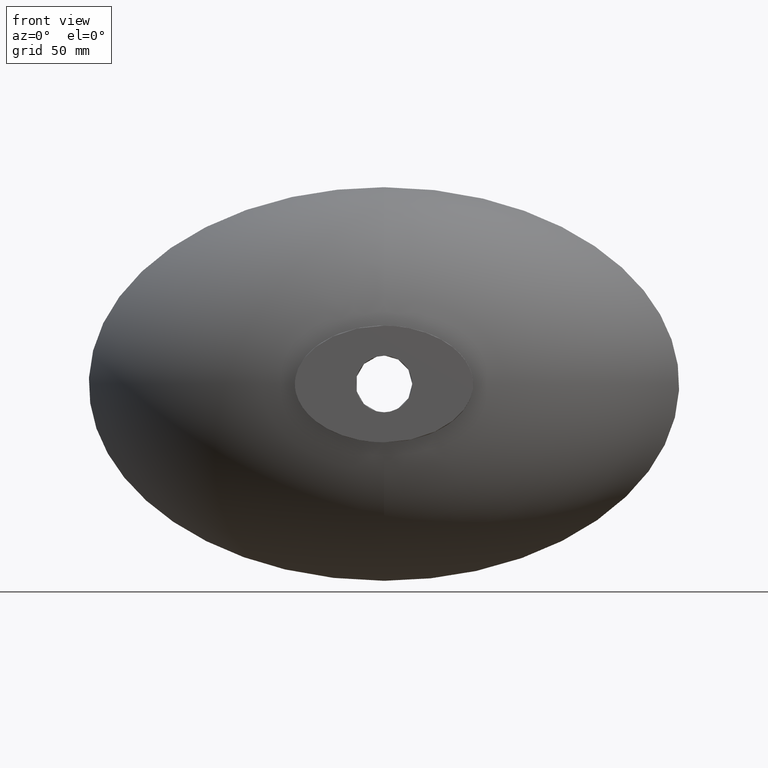
[diagram: clean part render]
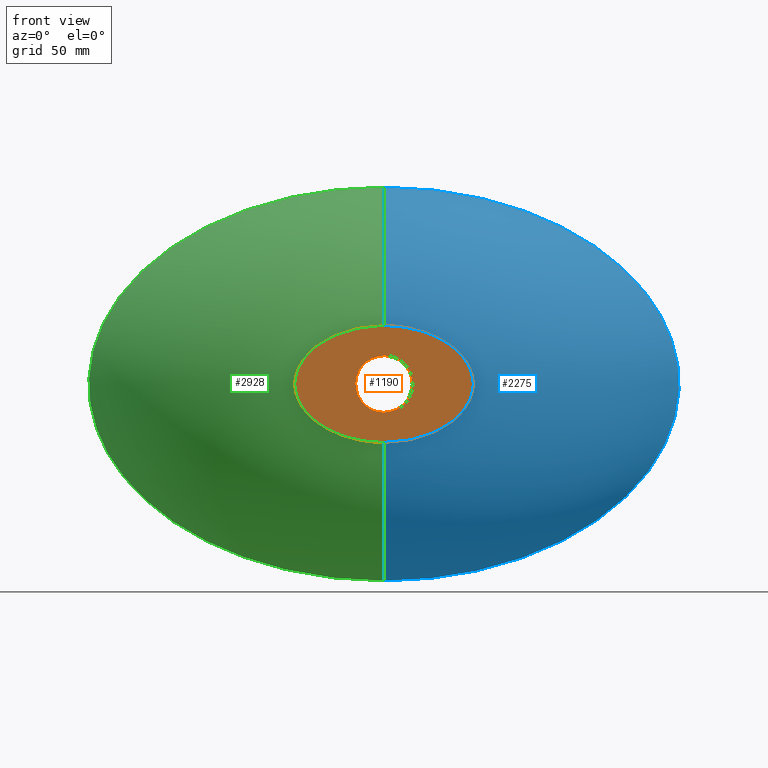
[diagram: same view with three faces highlighted in distinct colors, each labeled with its STEP entity id]
A machine part, front view with three faces highlighted in distinct colors.
Their STEP definitions:

[orange] entity #1190 — the highlighted planar face has unit normal (0, -1, 0).
#4 = CARTESIAN_POINT ( 'NONE',  ( -6.493723289480208800, -144.9999999999999700, 22.26524099857055800 ) ) ;
#19 = CARTESIAN_POINT ( 'NONE',  ( -2.750466703463506400, -144.9999999999999100, 22.89145991336859300 ) ) ;
#32 = CARTESIAN_POINT ( 'NONE',  ( -0.7136964953724115300, -144.9999999999999700, 22.99133516299608000 ) ) ;
#78 = CARTESIAN_POINT ( 'NONE',  ( -2.089189108949559300E-010, -145.0000000000000300, -47.49999999999998600 ) ) ;
#90 = CARTESIAN_POINT ( 'NONE',  ( -6.296416631815410400, -145.0000000000000300, -47.49999999998770800 ) ) ;
#99 = CARTESIAN_POINT ( 'NONE',  ( -18.88924989501062200, -145.0000000000000000, -46.33076592790961000 ) ) ;
#108 = CARTESIAN_POINT ( 'NONE',  ( -36.36561990102051600, -144.9999999999999700, -41.47790508437654500 ) ) ;
#116 = CARTESIAN_POINT ( 'NONE',  ( -51.48174258164537800, -145.0000000000000000, -33.88256651428973500 ) ) ;
#124 = CARTESIAN_POINT ( 'NONE',  ( -63.18159755699727500, -145.0000000000000300, -24.00503284814667300 ) ) ;
#139 = CARTESIAN_POINT ( 'NONE',  ( -20.05434122854609000, -144.9999999999999700, 46.00724187170650500 ) ) ;
#145 = CARTESIAN_POINT ( 'NONE',  ( -8.493098053219151600, -144.9999999999999400, 47.27988898871269900 ) ) ;
#151 = CARTESIAN_POINT ( 'NONE',  ( -2.203745821060757200, -144.9999999999999700, 47.48246148891911400 ) ) ;
#164 = CARTESIAN_POINT ( 'NONE',  ( -4.857225732735059900E-014, -144.9999999999999700, 47.50000000000000000 ) ) ;
#170 = CARTESIAN_POINT ( 'NONE',  ( -0.9444624947403715800, -144.9999999999999700, 47.49999999999997200 ) ) ;
#174 = CARTESIAN_POINT ( 'NONE',  ( -70.68515632653468100, -145.0000000000000300, -12.48958130257734600 ) ) ;
#181 = CARTESIAN_POINT ( 'NONE',  ( -0.3058699265881809100, -144.9999999999999700, 23.00000000000000700 ) ) ;
#221 = FACE_BOUND ( 'NONE', #1054, .T. ) ;
#272 = VERTEX_POINT ( 'NONE', #1877 ) ;
#315 = CARTESIAN_POINT ( 'NONE',  ( -4.808496517551456300E-011, -145.0000000000000300, -23.00000000000000000 ) ) ;
#428 = CARTESIAN_POINT ( 'NONE',  ( -2.656295322589485900E-015, -144.9999999999999700, 23.00000000000000700 ) ) ;
#430 = CARTESIAN_POINT ( 'NONE',  ( 0.3058699265881701900, -144.9999999999999700, 23.00000000000000700 ) ) ;
#431 = CARTESIAN_POINT ( 'NONE',  ( 0.7136964953724005400, -144.9999999999999700, 22.99133516299608400 ) ) ;
#434 = CARTESIAN_POINT ( 'NONE',  ( 2.750466703463495800, -144.9999999999999700, 22.89145991336859600 ) ) ;
#436 = AXIS2_PLACEMENT_3D ( 'NONE', #1094, #1092, #1087 ) ;
#441 = CARTESIAN_POINT ( 'NONE',  ( 6.493723289480201700, -145.0000000000000000, 22.26524099857056900 ) ) ;
#443 = CARTESIAN_POINT ( 'NONE',  ( 11.76226989751439500, -145.0000000000000000, 20.06579618222135900 ) ) ;
#447 = CARTESIAN_POINT ( 'NONE',  ( 16.46208693124019700, -145.0000000000000000, 16.46208693124019700 ) ) ;
#450 = CARTESIAN_POINT ( 'NONE',  ( -70.68515632650712600, -145.0000000000000300, 12.48958130257755200 ) ) ;
#451 = CARTESIAN_POINT ( 'NONE',  ( 20.06579618222135900, -145.0000000000000000, 11.76226989751439500 ) ) ;
#453 = CARTESIAN_POINT ( 'NONE',  ( 22.42234419973836200, -144.9999999999999700, 6.117398531763477400 ) ) ;
#456 = CARTESIAN_POINT ( 'NONE',  ( 23.28882790013081900, -144.9999999999999400, -5.421010862427522200E-015 ) ) ;
#460 = CARTESIAN_POINT ( 'NONE',  ( 22.42234419973835500, -144.9999999999999400, -6.117398531763478300 ) ) ;
#462 = CARTESIAN_POINT ( 'NONE',  ( 20.06579618222135200, -144.9999999999999700, -11.76226989751439300 ) ) ;
#464 = CARTESIAN_POINT ( 'NONE',  ( 16.46208693124019400, -144.9999999999999700, -16.46208693124019000 ) ) ;
#468 = CARTESIAN_POINT ( 'NONE',  ( 11.76226989751439900, -145.0000000000000000, -20.06579618222134800 ) ) ;
#470 = CARTESIAN_POINT ( 'NONE',  ( 6.117398531719088000, -145.0000000000000000, -22.42234419975688900 ) ) ;
#474 = B_SPLINE_CURVE_WITH_KNOTS ( 'NONE', 3,
 ( #164, #170, #151, #145, #139, #2296, #693, #2045, #450, #1805, #174, #124, #116, #108, #99, #90, #78 ),
 .UNSPECIFIED., .F., .F.,
 ( 4, 1, 1, 1, 1, 1, 1, 1, 1, 1, 1, 1, 1, 1, 4 ),
 ( 0.0000000000000000000, 0.006249999999988156500, 0.008333333333317394600, 0.04166666666658708200, 0.08333333333317427500, 0.1249999999997612500, 0.1666666666663484400, 0.2083333333329356300, 0.2499999999995225500, 0.2916666666661098000, 0.3333333333326969900, 0.3749999999992842400, 0.4166666666658711500, 0.4583333333324583500, 0.5000000000000294200 ),
 .UNSPECIFIED. ) ;
#479 = CARTESIAN_POINT ( 'NONE',  ( -4.808496517551456300E-011, -145.0000000000000300, -23.00000000000000000 ) ) ;
#496 = CARTESIAN_POINT ( 'NONE',  ( 2.039132843873100200, -145.0000000000000300, -23.00000000000681100 ) ) ;
#536 = CARTESIAN_POINT ( 'NONE',  ( -4.857225732735059900E-014, -144.9999999999999700, 47.50000000000000000 ) ) ;
#539 = CARTESIAN_POINT ( 'NONE',  ( 0.9444624947402577900, -144.9999999999999700, 47.50000000000002100 ) ) ;
#540 = CARTESIAN_POINT ( 'NONE',  ( 2.203745821060689300, -144.9999999999999700, 47.48246148891922000 ) ) ;
#544 = CARTESIAN_POINT ( 'NONE',  ( 8.493098053219599200, -144.9999999999999700, 47.27988898871306800 ) ) ;
#549 = CARTESIAN_POINT ( 'NONE',  ( 20.05434122854967800, -145.0000000000000000, 46.00724187170737200 ) ) ;
#552 = CARTESIAN_POINT ( 'NONE',  ( 36.36561990093777300, -145.0000000000000000, 41.47790508438042400 ) ) ;
#553 = CARTESIAN_POINT ( 'NONE',  ( 51.48174258159021800, -145.0000000000000000, 33.88256651429359300 ) ) ;
#555 = CARTESIAN_POINT ( 'NONE',  ( 63.18159755696972700, -145.0000000000000000, 24.00503284814968900 ) ) ;
#562 = CARTESIAN_POINT ( 'NONE',  ( 70.68515632652859900, -144.9999999999999700, 12.48958130257897800 ) ) ;
#563 = CARTESIAN_POINT ( 'NONE',  ( 73.40742183674269900, -144.9999999999999400, 7.411292116445277000E-014 ) ) ;
#565 = CARTESIAN_POINT ( 'NONE',  ( 70.68515632650097300, -144.9999999999999400, -12.48958130257923400 ) ) ;
#571 = CARTESIAN_POINT ( 'NONE',  ( 63.18159755691606000, -144.9999999999999700, -24.00503284815077300 ) ) ;
#573 = CARTESIAN_POINT ( 'NONE',  ( 51.48174258151357200, -144.9999999999999700, -33.88256651429549700 ) ) ;
#576 = CARTESIAN_POINT ( 'NONE',  ( 36.36561990084273800, -145.0000000000000000, -41.47790508438275500 ) ) ;
#582 = CARTESIAN_POINT ( 'NONE',  ( 18.88924989460169400, -145.0000000000000000, -46.33076592797957000 ) ) ;
#583 = CARTESIAN_POINT ( 'NONE',  ( 6.296416631388699300, -145.0000000000000300, -47.50000000001227800 ) ) ;
#594 = CARTESIAN_POINT ( 'NONE',  ( -2.656295322589485900E-015, -144.9999999999999700, 23.00000000000000700 ) ) ;
#602 = CARTESIAN_POINT ( 'NONE',  ( -4.857225732735059900E-014, -144.9999999999999700, 47.50000000000000000 ) ) ;
#661 = CARTESIAN_POINT ( 'NONE',  ( -11.76226989751439300, -144.9999999999999700, 20.06579618222134400 ) ) ;
#684 = CARTESIAN_POINT ( 'NONE',  ( -16.46208693124018700, -145.0000000000000000, 16.46208693124019000 ) ) ;
#693 = CARTESIAN_POINT ( 'NONE',  ( -51.48174258156878100, -145.0000000000000300, 33.88256651429161800 ) ) ;
#705 = CARTESIAN_POINT ( 'NONE',  ( -20.06579618222134400, -145.0000000000000300, 11.76226989751440000 ) ) ;
#933 = CARTESIAN_POINT ( 'NONE',  ( -20.06579618222134400, -145.0000000000000000, -11.76226989751440200 ) ) ;
#951 = CARTESIAN_POINT ( 'NONE',  ( -4.808496517551456300E-011, -145.0000000000000300, -23.00000000000000000 ) ) ;
#958 = CARTESIAN_POINT ( 'NONE',  ( -2.039132843969220700, -145.0000000000000300, -22.99999999999319300 ) ) ;
#971 = CARTESIAN_POINT ( 'NONE',  ( -6.117398531807872100, -145.0000000000000000, -22.42234419971982000 ) ) ;
#978 = B_SPLINE_CURVE_WITH_KNOTS ( 'NONE', 3,
 ( #1021, #583, #582, #576, #573, #571, #565, #563, #562, #555, #553, #552, #549, #544, #540, #539, #536 ),
 .UNSPECIFIED., .F., .F.,
 ( 4, 1, 1, 1, 1, 1, 1, 1, 1, 1, 1, 1, 1, 1, 4 ),
 ( 0.5000000000000294200, 0.5416666666657916600, 0.5833333333325377800, 0.6249999999992841300, 0.6666666666660303600, 0.7083333333327763700, 0.7499999999995226000, 0.7916666666662688400, 0.8333333333330151800, 0.8749999999997613000, 0.9166666666665075300, 0.9583333333332537700, 0.9916666666666508200, 0.9937499999999881400, 1.000000000000000000 ),
 .UNSPECIFIED. ) ;
#979 = B_SPLINE_CURVE_WITH_KNOTS ( 'NONE', 3,
 ( #1424, #181, #32, #19, #4, #661, #684, #705, #2307, #1163, #2588, #933, #996, #985, #971, #958, #951 ),
 .UNSPECIFIED., .F., .F.,
 ( 4, 1, 1, 1, 1, 1, 1, 1, 1, 1, 1, 1, 1, 1, 4 ),
 ( 0.0000000000000000000, 0.006249999999987800000, 0.008333333333316919300, 0.04166666666658470900, 0.08333333333316952900, 0.1249999999997541100, 0.1666666666663389500, 0.2083333333329237300, 0.2499999999995082800, 0.2916666666660931400, 0.3333333333326780100, 0.3749999999992628100, 0.4166666666658473400, 0.4583333333324322000, 0.5000000000000008900 ),
 .UNSPECIFIED. ) ;
#985 = CARTESIAN_POINT ( 'NONE',  ( -11.76226989751439000, -144.9999999999999700, -20.06579618222134400 ) ) ;
#996 = CARTESIAN_POINT ( 'NONE',  ( -16.46208693124018700, -144.9999999999999700, -16.46208693124019000 ) ) ;
#1021 = CARTESIAN_POINT ( 'NONE',  ( -2.089189108949559300E-010, -145.0000000000000300, -47.49999999999998600 ) ) ;
#1054 = EDGE_LOOP ( 'NONE', ( #2897, #2503 ) ) ;
#1087 = DIRECTION ( 'NONE',  ( -1.874120898153515300E-015, 0.0000000000000000000, 1.000000000000000000 ) ) ;
#1092 = DIRECTION ( 'NONE',  ( 0.0000000000000000000, -1.000000000000000000, 0.0000000000000000000 ) ) ;
#1094 = CARTESIAN_POINT ( 'NONE',  ( -2.656295322589485900E-015, -144.9999999999999700, 23.00000000000000700 ) ) ;
#1137 = PLANE ( 'NONE',  #436 ) ;
#1163 = CARTESIAN_POINT ( 'NONE',  ( -23.28882790013081900, -145.0000000000000000, -3.686287386450715100E-015 ) ) ;
#1190 = ADVANCED_FACE ( 'NONE', ( #1651, #221 ), #1137, .T. ) ;
#1256 = ORIENTED_EDGE ( 'NONE', *, *, #1447, .T. ) ;
#1297 = VERTEX_POINT ( 'NONE', #594 ) ;
#1413 = VERTEX_POINT ( 'NONE', #602 ) ;
#1424 = CARTESIAN_POINT ( 'NONE',  ( -2.656295322589485900E-015, -144.9999999999999700, 23.00000000000000700 ) ) ;
#1447 = EDGE_CURVE ( 'NONE', #272, #1413, #978, .T. ) ;
#1582 = EDGE_CURVE ( 'NONE', #2011, #1297, #2376, .T. ) ;
#1651 = FACE_OUTER_BOUND ( 'NONE', #3077, .T. ) ;
#1805 = CARTESIAN_POINT ( 'NONE',  ( -73.40742183673961600, -145.0000000000000300, -1.057416503954978900E-013 ) ) ;
#1877 = CARTESIAN_POINT ( 'NONE',  ( -2.089189108949559300E-010, -145.0000000000000300, -47.49999999999998600 ) ) ;
#2011 = VERTEX_POINT ( 'NONE', #315 ) ;
#2045 = CARTESIAN_POINT ( 'NONE',  ( -63.18159755694367900, -145.0000000000000300, 24.00503284814772100 ) ) ;
#2296 = CARTESIAN_POINT ( 'NONE',  ( -36.36561990092556600, -144.9999999999999700, 41.47790508437888900 ) ) ;
#2307 = CARTESIAN_POINT ( 'NONE',  ( -22.42234419973835500, -145.0000000000000000, 6.117398531763476500 ) ) ;
#2376 = B_SPLINE_CURVE_WITH_KNOTS ( 'NONE', 3,
 ( #479, #496, #470, #468, #464, #462, #460, #456, #453, #451, #447, #443, #441, #434, #431, #430, #428 ),
 .UNSPECIFIED., .F., .F.,
 ( 4, 1, 1, 1, 1, 1, 1, 1, 1, 1, 1, 1, 1, 1, 4 ),
 ( 0.5000000000000008900, 0.5416666666657655700, 0.5833333333325140300, 0.6249999999992627000, 0.6666666666660112700, 0.7083333333327598300, 0.7499999999995083900, 0.7916666666662570700, 0.8333333333330056300, 0.8749999999997542000, 0.9166666666665028700, 0.9583333333332514400, 0.9916666666666502600, 0.9937499999999877000, 1.000000000000000000 ),
 .UNSPECIFIED. ) ;
#2503 = ORIENTED_EDGE ( 'NONE', *, *, #1582, .F. ) ;
#2588 = CARTESIAN_POINT ( 'NONE',  ( -22.42234419973835500, -145.0000000000000000, -6.117398531763482700 ) ) ;
#2897 = ORIENTED_EDGE ( 'NONE', *, *, #3164, .F. ) ;
#3053 = EDGE_CURVE ( 'NONE', #1413, #272, #474, .T. ) ;
#3077 = EDGE_LOOP ( 'NONE', ( #3123, #1256 ) ) ;
#3123 = ORIENTED_EDGE ( 'NONE', *, *, #3053, .T. ) ;
#3164 = EDGE_CURVE ( 'NONE', #1297, #2011, #979, .T. ) ;

[blue] entity #2275 — the highlighted face is a freeform B-spline surface patch.
#3 = CARTESIAN_POINT ( 'NONE',  ( -50.77044592571282100, -69.48065096674660900, -139.0008291662818200 ) ) ;
#14 = CARTESIAN_POINT ( 'NONE',  ( -152.1952241878626100, -105.0933368160465900, -4.269647268141531700E-013 ) ) ;
#26 = CARTESIAN_POINT ( 'NONE',  ( -4.699545985468933300E-011, -137.9767139214340500, -48.07457877292666400 ) ) ;
#27 = CARTESIAN_POINT ( 'NONE',  ( -79.64378811439114300, -134.0694452757525400, -14.57131289702955400 ) ) ;
#30 = CARTESIAN_POINT ( 'NONE',  ( -131.4198664027686900, -105.5501069200134500, 56.17012946235632100 ) ) ;
#46 = CARTESIAN_POINT ( 'NONE',  ( -5.334274688628681800E-014, -137.9182254667157400, 47.50000000000003600 ) ) ;
#58 = EDGE_LOOP ( 'NONE', ( #2458, #1945, #1356, #1456 ) ) ;
#65 = CARTESIAN_POINT ( 'NONE',  ( -1.125401855039953600E-013, -121.0232837525449000, 92.48664029822941800 ) ) ;
#68 = CARTESIAN_POINT ( 'NONE',  ( -3.118165448068310800E-013, 0.0000000000000000000, 160.0000000000000300 ) ) ;
#81 = CARTESIAN_POINT ( 'NONE',  ( -169.0111896270357800, -88.83468744896190100, -33.59988951834204600 ) ) ;
#82 = CARTESIAN_POINT ( 'NONE',  ( -122.7013657018369600, -118.7666803058514800, 24.15159170685960500 ) ) ;
#97 = CARTESIAN_POINT ( 'NONE',  ( -8.533107664467388900, -137.8965847384702400, 47.28350667392114600 ) ) ;
#101 = CARTESIAN_POINT ( 'NONE',  ( -55.63150935072114600, -47.52499864477894000, -148.8118607081692100 ) ) ;
#120 = CARTESIAN_POINT ( 'NONE',  ( 50.11292463796949900, -131.0709353392904900, 61.85538688020398700 ) ) ;
#122 = CARTESIAN_POINT ( 'NONE',  ( 107.1117528840296100, -105.9612000135799300, 79.66613646914335300 ) ) ;
#157 = CARTESIAN_POINT ( 'NONE',  ( -71.28898759168383500, -134.5297357954835900, 27.98375824020433800 ) ) ;
#184 = CARTESIAN_POINT ( 'NONE',  ( -5.037810887296988200E-010, -8.027847568853538000, -159.9999999999999700 ) ) ;
#193 = CARTESIAN_POINT ( 'NONE',  ( -75.52233432144544200, -106.3722931071464900, -97.79379090047481800 ) ) ;
#228 = VERTEX_POINT ( 'NONE', #1721 ) ;
#236 = CARTESIAN_POINT ( 'NONE',  ( -1.515714637134735200E-013, -106.7833862007195500, 112.0186625860382300 ) ) ;
#242 = CARTESIAN_POINT ( 'NONE',  ( -79.64378811437134700, -134.0694452757556400, 14.57131289702967600 ) ) ;
#273 = CARTESIAN_POINT ( 'NONE',  ( -230.7103945563134200, -8.533487015231667500, 42.04873275051740900 ) ) ;
#292 = CARTESIAN_POINT ( 'NONE',  ( 100.9396803131073200, -129.0181084348402000, 1.415655848732230100E-013 ) ) ;
#301 = CARTESIAN_POINT ( 'NONE',  ( -48.08627093007370200, -89.38336773316046900, 124.8129120909456400 ) ) ;
#302 = CARTESIAN_POINT ( 'NONE',  ( 185.7170571626371000, -48.28859049470792500, -76.56995860281871600 ) ) ;
#318 = CARTESIAN_POINT ( 'NONE',  ( -21.36207109904527400, -136.1736305087930800, -54.01808198360170400 ) ) ;
#321 = CARTESIAN_POINT ( 'NONE',  ( -199.5200159049244100, -24.95306240915117300, -79.79430724485786200 ) ) ;
#323 = CARTESIAN_POINT ( 'NONE',  ( -106.7495658373960500, -47.73880436276201800, -133.3304118720268100 ) ) ;
#327 = CARTESIAN_POINT ( 'NONE',  ( -222.4020268667658200, -25.17852188826757900, -41.58479999267670700 ) ) ;
#332 = CARTESIAN_POINT ( 'NONE',  ( -0.9489397031083777200, -137.9182254667157700, 47.50000000000002800 ) ) ;
#334 = CARTESIAN_POINT ( 'NONE',  ( -114.7334225326773000, -24.37330946285016300, -138.8420421074433200 ) ) ;
#339 = CARTESIAN_POINT ( 'NONE',  ( -162.7552271005208700, -24.66318593600094600, -113.2136843669656800 ) ) ;
#343 = CARTESIAN_POINT ( 'NONE',  ( -230.7103945563188500, -8.533487015232371000, -42.04873275051750900 ) ) ;
#347 = CARTESIAN_POINT ( 'NONE',  ( -207.0576575432013700, -8.429384776272572200, -80.62483112808266100 ) ) ;
#349 = CARTESIAN_POINT ( 'NONE',  ( 168.9546368257470900, -8.295539040464417400, -114.3666008063351300 ) ) ;
#350 = CARTESIAN_POINT ( 'NONE',  ( -107.1117528840954100, -105.9612000135776000, -79.66613646912595900 ) ) ;
#351 = CARTESIAN_POINT ( 'NONE',  ( 119.1164520502642000, -8.161693304658276900, -140.1798737945346700 ) ) ;
#352 = CARTESIAN_POINT ( 'NONE',  ( -3.158149667104887600, 6.162975822039154700E-030, 160.0000000000000300 ) ) ;
#360 = CARTESIAN_POINT ( 'NONE',  ( -3.118165448068310800E-013, 6.162975822039154700E-030, 160.0000000000000300 ) ) ;
#362 = CARTESIAN_POINT ( 'NONE',  ( -210.3843271333239800, 2.465190328815661900E-029, 80.70557687257186800 ) ) ;
#368 = B_SPLINE_CURVE_WITH_KNOTS ( 'NONE', 3,
 ( #896, #883, #1504, #1111, #1688, #3066, #1365, #1304, #1701, #184, #766 ),
 .UNSPECIFIED., .F., .F.,
 ( 4, 1, 1, 1, 1, 1, 1, 1, 4 ),
 ( 0.1739864191355493000, 0.2772381167436056600, 0.3804898143516619600, 0.4837415119597183200, 0.5869932095677747900, 0.6902449071758309800, 0.7934966047838873900, 0.8967483023919438100, 1.000000000000000000 ),
 .UNSPECIFIED. ) ;
#369 = CARTESIAN_POINT ( 'NONE',  ( -171.6977681166120800, 1.232595164407830900E-029, 114.4651787444076200 ) ) ;
#370 = CARTESIAN_POINT ( 'NONE',  ( 4.586491120555853000, -106.7820158904075800, 111.9774547407207700 ) ) ;
#374 = CARTESIAN_POINT ( 'NONE',  ( 67.02268480654146300, -3.081487911019577400E-030, 155.1777592329617300 ) ) ;
#375 = CARTESIAN_POINT ( 'NONE',  ( 121.0583653088580300, -9.244463733058732100E-030, 140.2562180888825200 ) ) ;
#379 = CARTESIAN_POINT ( 'NONE',  ( 3.158149667104207700, 6.162975822039154700E-030, 160.0000000000000300 ) ) ;
#381 = CARTESIAN_POINT ( 'NONE',  ( 7.369015889910233600, 6.162975822039154700E-030, 159.9436537540059600 ) ) ;
#387 = CARTESIAN_POINT ( 'NONE',  ( -1.956109484595270200E-010, -137.9182254667158000, -47.49999999999994300 ) ) ;
#400 = CARTESIAN_POINT ( 'NONE',  ( -4.074742404445253800E-011, -24.05122449267955900, -160.5151565991572500 ) ) ;
#401 = CARTESIAN_POINT ( 'NONE',  ( -59.82382921131961200, -24.14784998373026400, -154.8408011686273400 ) ) ;
#404 = CARTESIAN_POINT ( 'NONE',  ( 199.5200159049094900, -24.95306240915011700, 79.79430724486535100 ) ) ;
#406 = CARTESIAN_POINT ( 'NONE',  ( 222.4020268667626400, -25.17852188826732300, 41.58479999268077900 ) ) ;
#408 = CARTESIAN_POINT ( 'NONE',  ( 114.7334225326322200, -24.37330946284791700, 138.8420421074528400 ) ) ;
#410 = CARTESIAN_POINT ( 'NONE',  ( 162.7552271004908600, -24.66318593599911000, 113.2136843669751700 ) ) ;
#412 = CARTESIAN_POINT ( 'NONE',  ( 75.52233432123262000, -106.3722931071545200, -97.79379090050270000 ) ) ;
#413 = CARTESIAN_POINT ( 'NONE',  ( -2.686652983419080000E-013, -24.08343298969621000, 158.6237047889785300 ) ) ;
#416 = CARTESIAN_POINT ( 'NONE',  ( -2.823262457152253500E-013, -8.027847568853538000, 160.0000000000000300 ) ) ;
#419 = CARTESIAN_POINT ( 'NONE',  ( -27.93520942743341400, -8.033350115769925600, 159.2869761650257500 ) ) ;
#422 = CARTESIAN_POINT ( 'NONE',  ( -3.106775814452801000, -8.027847568853527300, 160.0000000000000000 ) ) ;
#425 = CARTESIAN_POINT ( 'NONE',  ( -7.249143567056081300, -8.028293721306203800, 159.9433301657895200 ) ) ;
#426 = CARTESIAN_POINT ( 'NONE',  ( -119.1164520502812000, -8.161693304659268100, 140.1798737945310600 ) ) ;
#429 = CARTESIAN_POINT ( 'NONE',  ( -65.93424533979821000, -8.064531214963158900, 155.1525352354282500 ) ) ;
#433 = CARTESIAN_POINT ( 'NONE',  ( -207.0576575431908600, -8.429384776271286100, 80.62483112808341400 ) ) ;
#437 = CARTESIAN_POINT ( 'NONE',  ( 106.7495658372344800, -47.73880436275658200, -133.3304118720522800 ) ) ;
#438 = CARTESIAN_POINT ( 'NONE',  ( -71.28898759172228900, -134.5297357954778500, -27.98375824020356700 ) ) ;
#439 = CARTESIAN_POINT ( 'NONE',  ( -168.9546368257585100, -8.295539040465232700, 114.3666008063314600 ) ) ;
#442 = CARTESIAN_POINT ( 'NONE',  ( -121.0583653088579400, 1.232595164407830900E-029, -140.2562180888824900 ) ) ;
#444 = CARTESIAN_POINT ( 'NONE',  ( -171.6977681166116000, 2.465190328815661900E-029, -114.4651787444079100 ) ) ;
#471 = CARTESIAN_POINT ( 'NONE',  ( 114.7334225325804300, -24.37330946284447500, -138.8420421074589500 ) ) ;
#473 = CARTESIAN_POINT ( 'NONE',  ( 1.965639051666695100, -106.7833862007195200, 112.0186625860383300 ) ) ;
#475 = CARTESIAN_POINT ( 'NONE',  ( 59.82382921124224100, -24.14784998372951100, -154.8408011686167100 ) ) ;
#476 = CARTESIAN_POINT ( 'NONE',  ( 185.7170571626859300, -48.28859049471065400, 76.56995860281441000 ) ) ;
#478 = CARTESIAN_POINT ( 'NONE',  ( 151.4428090571044800, -48.01369742873545500, 108.6577913976226700 ) ) ;
#484 = CARTESIAN_POINT ( 'NONE',  ( 25.01161194347555000, -47.47521245616337600, 151.7957348660939700 ) ) ;
#486 = CARTESIAN_POINT ( 'NONE',  ( 6.490342757576388300, -47.46482760700418200, 152.4339173821325600 ) ) ;
#488 = CARTESIAN_POINT ( 'NONE',  ( -222.4020268667508700, -25.17852188826602600, 41.58479999267702700 ) ) ;
#491 = CARTESIAN_POINT ( 'NONE',  ( 162.7552271004490800, -24.66318593599564200, -113.2136843669800900 ) ) ;
#495 = CARTESIAN_POINT ( 'NONE',  ( -28.39700889706448100, 2.465190328815661900E-029, 159.2908634255087700 ) ) ;
#497 = CARTESIAN_POINT ( 'NONE',  ( -234.3653754005941000, 2.465190328815661900E-029, 42.10866222806002700 ) ) ;
#500 = CARTESIAN_POINT ( 'NONE',  ( 234.3653754005939900, 0.0000000000000000000, -42.10866222806018300 ) ) ;
#502 = CARTESIAN_POINT ( 'NONE',  ( 242.8173122997031600, 0.0000000000000000000, 5.145555747980462800E-014 ) ) ;
#529 = EDGE_CURVE ( 'NONE', #3196, #2507, #2951, .T. ) ;
#537 = CARTESIAN_POINT ( 'NONE',  ( -4.971068145928711400E-010, 0.0000000000000000000, -160.0000000000000300 ) ) ;
#541 = CARTESIAN_POINT ( 'NONE',  ( -39.31278103342199200, -106.6920321799260300, -109.2714728982031900 ) ) ;
#554 = CARTESIAN_POINT ( 'NONE',  ( 171.6977681166116300, -1.232595164407830900E-029, 114.4651787444077900 ) ) ;
#574 = CARTESIAN_POINT ( 'NONE',  ( 151.4428090570348200, -48.01369742873197300, -108.6577913976302600 ) ) ;
#591 = CARTESIAN_POINT ( 'NONE',  ( 210.3843271333236900, -1.232595164407830900E-029, 80.70557687257205300 ) ) ;
#595 = CARTESIAN_POINT ( 'NONE',  ( 63.16299334209050900, -6.161471189270102200E-030, -156.2435836003959400 ) ) ;
#596 = CARTESIAN_POINT ( 'NONE',  ( -242.8173122997031900, 2.465190328815661900E-029, -2.002860225759632400E-013 ) ) ;
#597 = CARTESIAN_POINT ( 'NONE',  ( -36.48765542287075900, -137.3918293742527500, 41.54895502446660800 ) ) ;
#598 = CARTESIAN_POINT ( 'NONE',  ( -121.0583653088586300, 1.232595164407830900E-029, 140.2562180888824300 ) ) ;
#600 = CARTESIAN_POINT ( 'NONE',  ( -67.02268480654207400, 1.232595164407830900E-029, 155.1777592329617600 ) ) ;
#607 = CARTESIAN_POINT ( 'NONE',  ( -7.369015889910913900, 6.162975822039154700E-030, 159.9436537540059900 ) ) ;
#608 = CARTESIAN_POINT ( 'NONE',  ( 3.041781375512044900, -131.7285731011823800, 70.78970766055918800 ) ) ;
#609 = CARTESIAN_POINT ( 'NONE',  ( 3.106775814452181100, -8.027847568853546900, 160.0000000000000600 ) ) ;
#612 = CARTESIAN_POINT ( 'NONE',  ( 7.249143567055471100, -8.028293721306246400, 159.9433301657895800 ) ) ;
#614 = CARTESIAN_POINT ( 'NONE',  ( 27.93520942743291600, -8.033350115770089100, 159.2869761650260900 ) ) ;
#621 = CARTESIAN_POINT ( 'NONE',  ( 65.93424533979839500, -8.064531214963532000, 155.1525352354290700 ) ) ;
#623 = CARTESIAN_POINT ( 'NONE',  ( 168.9546368257624400, -8.295539040466056900, 114.3666008063334500 ) ) ;
#626 = CARTESIAN_POINT ( 'NONE',  ( 2.991191460563777900, -24.08343298969623100, 158.6237047889785900 ) ) ;
#631 = CARTESIAN_POINT ( 'NONE',  ( -199.5200159048954200, -24.95306240914832300, 79.79430724486024900 ) ) ;
#632 = CARTESIAN_POINT ( 'NONE',  ( -114.7334225326259800, -24.37330946284650700, 138.8420421074489500 ) ) ;
#637 = CARTESIAN_POINT ( 'NONE',  ( -2.991191460564368600, -24.08343298969618800, 158.6237047889784700 ) ) ;
#639 = CARTESIAN_POINT ( 'NONE',  ( -2.393918396847993800E-013, -47.46391129678422500, 152.4890756055938500 ) ) ;
#640 = CARTESIAN_POINT ( 'NONE',  ( 2.781575467532592300, -47.46391129678424600, 152.4890756055939400 ) ) ;
#646 = CARTESIAN_POINT ( 'NONE',  ( -151.4428090571547600, -48.01369742873706100, -108.6577913976066300 ) ) ;
#648 = CARTESIAN_POINT ( 'NONE',  ( -162.7552271004794300, -24.66318593599731900, 113.2136843669701000 ) ) ;
#649 = CARTESIAN_POINT ( 'NONE',  ( 106.7495658373207700, -47.73880436276008500, 133.3304118720430400 ) ) ;
#652 = CARTESIAN_POINT ( 'NONE',  ( 59.03937978310214200, -47.53925235931114900, 147.7797641190880100 ) ) ;
#653 = CARTESIAN_POINT ( 'NONE',  ( 199.5200159048801800, -24.95306240914738900, -79.79430724486812200 ) ) ;
#655 = CARTESIAN_POINT ( 'NONE',  ( 6.979446741315853400, -24.08439924460675400, 158.5669612346733000 ) ) ;
#660 = B_SPLINE_SURFACE_WITH_KNOTS ( 'NONE', 3, 3, ( 
 ( #1623, #332, #2400, #97, #961, #597, #806, #3222, #1147, #2709, #2261, #2172, #3019, #2191, #2379, #26, #1155, #2125, #2157, #2280, #2279, #2272, #2407, #2267, #2143, #2091, #2496, #2451, #2363, #780, #46 ),
 ( #2836, #2643, #2601, #2584, #1106, #2478, #2251, #157, #242, #1639, #27, #438, #1045, #2390, #318, #1980, #885, #983, #2453, #2463, #2383, #2456, #2341, #2439, #2152, #2146, #2432, #3038, #3030, #3014, #3216 ),
 ( #2984, #1954, #3010, #3001, #2996, #2992, #2988, #2983, #2975, #2938, #2933, #2922, #2916, #2906, #1869, #1842, #875, #1588, #1710, #941, #2555, #292, #2723, #1199, #3163, #120, #854, #3183, #608, #2693, #2232 ),
 ( #65, #2393, #851, #2163, #2257, #1613, #2435, #2557, #82, #2049, #689, #3150, #2920, #3138, #2788, #2998, #2765, #2755, #2754, #1179, #3140, #2303, #2037, #2305, #2441, #1990, #3024, #1100, #2149, #2209, #2910 ),
 ( #2202, #2166, #760, #2942, #2233, #2245, #2255, #30, #2831, #14, #2613, #2107, #350, #193, #541, #2283, #1033, #412, #3231, #2500, #2856, #1926, #1788, #2292, #122, #1302, #2051, #2987, #370, #473, #236 ),
 ( #2428, #1347, #990, #3046, #301, #2289, #2263, #2300, #3205, #1238, #81, #1615, #2889, #2657, #2879, #2858, #2853, #2314, #2316, #2416, #2404, #793, #2764, #2335, #2311, #2870, #2876, #2851, #2845, #2285, #2548 ),
 ( #2572, #2630, #2483, #1373, #2516, #2138, #2536, #2689, #2395, #3032, #1880, #897, #721, #3156, #3, #1090, #863, #858, #846, #813, #805, #855, #833, #844, #830, #839, #825, #832, #823, #828, #816 ),
 ( #824, #811, #821, #807, #756, #860, #840, #801, #765, #763, #737, #740, #646, #323, #101, #2085, #928, #437, #574, #302, #2956, #728, #730, #476, #478, #649, #652, #484, #486, #640, #639 ),
 ( #722, #637, #724, #717, #719, #632, #648, #631, #488, #1281, #327, #321, #339, #334, #401, #400, #475, #471, #491, #653, #713, #714, #406, #404, #410, #408, #792, #797, #655, #626, #413 ),
 ( #416, #422, #425, #419, #429, #426, #439, #433, #273, #691, #343, #347, #767, #1221, #1149, #743, #747, #351, #349, #757, #759, #773, #777, #770, #623, #709, #621, #614, #612, #609, #1099 ),
 ( #360, #352, #607, #495, #600, #598, #369, #362, #497, #596, #703, #704, #444, #442, #695, #698, #595, #3182, #692, #803, #500, #502, #754, #591, #554, #375, #374, #1153, #381, #379, #1227 ) ),
 .UNSPECIFIED., .F., .T., .F.,
 ( 4, 1, 1, 1, 1, 1, 1, 1, 4 ),
 ( 4, 1, 1, 1, 1, 1, 1, 1, 1, 1, 1, 1, 1, 1, 1, 1, 1, 1, 1, 1, 1, 1, 1, 1, 1, 1, 1, 1, 4 ),
 ( 0.1739864191355493000, 0.2772381167436056600, 0.3804898143516619600, 0.4837415119597183200, 0.5869932095677747900, 0.6902449071758309800, 0.7934966047838873900, 0.8967483023919438100, 1.000000000000000000 ),
 ( 0.0000000000000000000, 0.006250000000000088800, 0.008333333333333303700, 0.04166666666666663000, 0.08333333333333337000, 0.1249999999999998900, 0.1666666666666666300, 0.2083333333333333700, 0.2499999999999998300, 0.2916666666666666300, 0.3333333333333333700, 0.3750000000000001100, 0.4166666666666666300, 0.4583333333333333700, 0.5000000000009839900, 0.5416666666666667400, 0.5833333333333332600, 0.6250000000000000000, 0.6666666666666667400, 0.7083333333333332600, 0.7499999999999998900, 0.7916666666666666300, 0.8333333333333333700, 0.8750000000000000000, 0.9166666666666666300, 0.9583333333333333700, 0.9916666666666667000, 0.9937500000000000200, 1.000000000000000000 ),
 .UNSPECIFIED. ) ;
#689 = CARTESIAN_POINT ( 'NONE',  ( -122.7013657018667100, -118.7666803058483400, -24.15159170685882000 ) ) ;
#691 = CARTESIAN_POINT ( 'NONE',  ( -239.0572402235766000, -8.578102260500614300, -2.547183349806498900E-013 ) ) ;
#692 = CARTESIAN_POINT ( 'NONE',  ( 171.6977681166117400, -6.162975822039154700E-030, -114.4651787444076900 ) ) ;
#695 = CARTESIAN_POINT ( 'NONE',  ( -63.16299334209026000, 6.162975822039154700E-030, -156.2435836003961400 ) ) ;
#698 = CARTESIAN_POINT ( 'NONE',  ( 1.560538379930494500E-013, -6.162975822039154700E-030, -161.8782081998020300 ) ) ;
#703 = CARTESIAN_POINT ( 'NONE',  ( -234.3653754005939600, 2.465190328815661900E-029, -42.10866222806041000 ) ) ;
#704 = CARTESIAN_POINT ( 'NONE',  ( -210.3843271333236400, 1.232595164407830900E-029, -80.70557687257218000 ) ) ;
#709 = CARTESIAN_POINT ( 'NONE',  ( 119.1164520502831300, -8.161693304659914700, 140.1798737945325700 ) ) ;
#713 = CARTESIAN_POINT ( 'NONE',  ( 222.4020268667475500, -25.17852188826582300, -41.58479999268136100 ) ) ;
#714 = CARTESIAN_POINT ( 'NONE',  ( 230.4959012417091600, -25.27514737931709400, 2.368094955759868500E-013 ) ) ;
#717 = CARTESIAN_POINT ( 'NONE',  ( -26.89615196562696300, -24.09535013359224100, 157.9100746372623700 ) ) ;
#719 = CARTESIAN_POINT ( 'NONE',  ( -63.48446876603689000, -24.16288061567052400, 153.7742172312091500 ) ) ;
#721 = CARTESIAN_POINT ( 'NONE',  ( -138.2727700015576900, -69.65487063374756400, -101.4004047986585600 ) ) ;
#722 = CARTESIAN_POINT ( 'NONE',  ( -2.686652983419080000E-013, -24.08343298969621000, 158.6237047889785300 ) ) ;
#724 = CARTESIAN_POINT ( 'NONE',  ( -6.979446741316418300, -24.08439924460666900, 158.5669612346730400 ) ) ;
#728 = CARTESIAN_POINT ( 'NONE',  ( 214.7144697239098200, -48.59402723468227200, 3.388967068252823700E-013 ) ) ;
#730 = CARTESIAN_POINT ( 'NONE',  ( 207.1208504947600500, -48.50239621269111000, 39.87135426420971400 ) ) ;
#737 = CARTESIAN_POINT ( 'NONE',  ( -207.1208504947660700, -48.50239621269136600, -39.87135426420297800 ) ) ;
#740 = CARTESIAN_POINT ( 'NONE',  ( -185.7170571627112800, -48.28859049471158500, -76.56995860280190400 ) ) ;
#743 = CARTESIAN_POINT ( 'NONE',  ( -1.486159164100115400E-011, -8.012975820430643400, -161.8889944736821700 ) ) ;
#747 = CARTESIAN_POINT ( 'NONE',  ( 62.13551628903513800, -8.057591065699153200, -156.2220110526335500 ) ) ;
#750 = B_SPLINE_CURVE_WITH_KNOTS ( 'NONE', 3,
 ( #1682, #1194, #1185, #1183, #1175, #1173, #1168, #1166, #1164, #1160, #1159, #1157, #1154, #1152, #1150, #1146, #1143 ),
 .UNSPECIFIED., .F., .F.,
 ( 4, 1, 1, 1, 1, 1, 1, 1, 1, 1, 1, 1, 1, 1, 4 ),
 ( 0.5000000000000000000, 0.5416666666657648000, 0.5833333333325132500, 0.6249999999992620300, 0.6666666666660107100, 0.7083333333327592700, 0.7499999999995079500, 0.7916666666662566200, 0.8333333333330053000, 0.8749999999997539700, 0.9166666666665026500, 0.9583333333332513200, 0.9916666666666502600, 0.9937499999999877000, 1.000000000000000000 ),
 .UNSPECIFIED. ) ;
#754 = CARTESIAN_POINT ( 'NONE',  ( 234.3653754005939900, -2.465190328815661900E-029, 42.10866222806029700 ) ) ;
#756 = CARTESIAN_POINT ( 'NONE',  ( -59.03937978309926400, -47.53925235931039600, 147.7797641190844300 ) ) ;
#757 = CARTESIAN_POINT ( 'NONE',  ( 207.0576575431850000, -8.429384776270824300, -80.62483112808635600 ) ) ;
#759 = CARTESIAN_POINT ( 'NONE',  ( 230.7103945563119400, -8.533487015231553800, -42.04873275051909300 ) ) ;
#760 = CARTESIAN_POINT ( 'NONE',  ( -4.586491120556134500, -106.7820158904077200, 111.9774547407203600 ) ) ;
#763 = CARTESIAN_POINT ( 'NONE',  ( -214.7144697239075700, -48.59402723468222300, -4.678992988208733800E-013 ) ) ;
#765 = CARTESIAN_POINT ( 'NONE',  ( -207.1208504947410900, -48.50239621268995900, 39.87135426420379500 ) ) ;
#766 = CARTESIAN_POINT ( 'NONE',  ( -4.971068145928711400E-010, 0.0000000000000000000, -160.0000000000000300 ) ) ;
#767 = CARTESIAN_POINT ( 'NONE',  ( -168.9546368257734300, -8.295539040466870500, -114.3666008063299100 ) ) ;
#770 = CARTESIAN_POINT ( 'NONE',  ( 207.0576575431958600, -8.429384776272110400, 80.62483112808540400 ) ) ;
#773 = CARTESIAN_POINT ( 'NONE',  ( 239.0572402235770500, -8.578102260500674700, 1.213355797330902200E-013 ) ) ;
#777 = CARTESIAN_POINT ( 'NONE',  ( 230.7103945563175400, -8.533487015232257300, 42.04873275051896500 ) ) ;
#780 = CARTESIAN_POINT ( 'NONE',  ( 0.9489397031082541500, -137.9182254667157100, 47.50000000000004300 ) ) ;
#792 = CARTESIAN_POINT ( 'NONE',  ( 63.48446876603840400, -24.16288061567133000, 153.7742172312114000 ) ) ;
#793 = CARTESIAN_POINT ( 'NONE',  ( 175.2808425021420900, -88.78248742192461400, 4.042932512457288500E-013 ) ) ;
#797 = CARTESIAN_POINT ( 'NONE',  ( 26.89615196562668600, -24.09535013359258900, 157.9100746372633600 ) ) ;
#801 = CARTESIAN_POINT ( 'NONE',  ( -185.7170571626628300, -48.28859049470901300, 76.56995860280626700 ) ) ;
#803 = CARTESIAN_POINT ( 'NONE',  ( 210.3843271333237200, 0.0000000000000000000, -80.70557687257196700 ) ) ;
#805 = CARTESIAN_POINT ( 'NONE',  ( 189.2390047056159400, -69.82909030074655700, -37.18537082908638100 ) ) ;
#806 = CARTESIAN_POINT ( 'NONE',  ( -51.62720045023420600, -136.8654332817888500, 33.97430823060175700 ) ) ;
#807 = CARTESIAN_POINT ( 'NONE',  ( -25.01161194347556500, -47.47521245616304200, 151.7957348660924900 ) ) ;
#811 = CARTESIAN_POINT ( 'NONE',  ( -2.781575467533120300, -47.46391129678420400, 152.4890756055937700 ) ) ;
#813 = CARTESIAN_POINT ( 'NONE',  ( 169.6106483652462200, -69.75286919643365000, -71.45456442005381300 ) ) ;
#816 = CARTESIAN_POINT ( 'NONE',  ( -2.042636892962690400E-013, -69.45887350837124100, 142.4642955955967000 ) ) ;
#821 = CARTESIAN_POINT ( 'NONE',  ( -6.490342757576875100, -47.46482760700411100, 152.4339173821321900 ) ) ;
#823 = CARTESIAN_POINT ( 'NONE',  ( 5.923218691323636000, -69.45920017024687400, 142.4123435991570500 ) ) ;
#824 = CARTESIAN_POINT ( 'NONE',  ( -2.393918396847993800E-013, -47.46391129678422500, 152.4890756055938500 ) ) ;
#825 = CARTESIAN_POINT ( 'NONE',  ( 53.88344115948902400, -69.48573237370058600, 138.0320358575844800 ) ) ;
#828 = CARTESIAN_POINT ( 'NONE',  ( 2.538522296281430400, -69.45887350837124100, 142.4642955955968100 ) ) ;
#830 = CARTESIAN_POINT ( 'NONE',  ( 138.2727700014957600, -69.65487063374685300, 101.4004047986774900 ) ) ;
#832 = CARTESIAN_POINT ( 'NONE',  ( 22.82632307944577100, -69.46290233817067900, 141.8115054705339400 ) ) ;
#833 = CARTESIAN_POINT ( 'NONE',  ( 189.2390047056471500, -69.82909030074704000, 37.18537082908509500 ) ) ;
#839 = CARTESIAN_POINT ( 'NONE',  ( 97.46537443345380300, -69.55687207105913200, 124.4689295359386000 ) ) ;
#840 = CARTESIAN_POINT ( 'NONE',  ( -151.4428090570855300, -48.01369742873380600, 108.6577913976145600 ) ) ;
#844 = CARTESIAN_POINT ( 'NONE',  ( 169.6106483653068400, -69.75286919643450300, 71.45456442004841300 ) ) ;
#846 = CARTESIAN_POINT ( 'NONE',  ( 138.2727700014092100, -69.65487063374580100, -101.4004047986869600 ) ) ;
#851 = CARTESIAN_POINT ( 'NONE',  ( -3.835083443472387300, -121.0212926318567200, 92.45260003088229400 ) ) ;
#854 = CARTESIAN_POINT ( 'NONE',  ( 27.67511264662944000, -131.5499282836632100, 68.60171090792555000 ) ) ;
#855 = CARTESIAN_POINT ( 'NONE',  ( 196.2209115282682300, -69.86175648830941000, 3.750644259874592200E-013 ) ) ;
#858 = CARTESIAN_POINT ( 'NONE',  ( 97.46537443334656800, -69.55687207105810900, -124.4689295359501400 ) ) ;
#860 = CARTESIAN_POINT ( 'NONE',  ( -106.7495658373101700, -47.73880436275879200, 133.3304118720367100 ) ) ;
#863 = CARTESIAN_POINT ( 'NONE',  ( 50.77044592555259300, -69.48065096674635300, -139.0008291662612700 ) ) ;
#873 = EDGE_CURVE ( 'NONE', #2370, #228, #750, .T. ) ;
#875 = CARTESIAN_POINT ( 'NONE',  ( 26.07241179004093500, -131.5841420654062400, -69.08359119561505700 ) ) ;
#883 = CARTESIAN_POINT ( 'NONE',  ( -2.209747185736400500E-010, -136.3051420858588500, -55.36411460974153400 ) ) ;
#885 = CARTESIAN_POINT ( 'NONE',  ( 21.36207109894331100, -136.1736305087946400, -54.01808198359852800 ) ) ;
#896 = CARTESIAN_POINT ( 'NONE',  ( -1.956109484595270200E-010, -137.9182254667158000, -47.49999999999994300 ) ) ;
#897 = CARTESIAN_POINT ( 'NONE',  ( -169.6106483653374800, -69.75286919643491500, -71.45456442003356300 ) ) ;
#928 = CARTESIAN_POINT ( 'NONE',  ( 55.63150935059212500, -47.52499864477820100, -148.8118607081520100 ) ) ;
#941 = CARTESIAN_POINT ( 'NONE',  ( 87.08865834256766900, -129.7512609007204400, -35.65643178743329900 ) ) ;
#961 = CARTESIAN_POINT ( 'NONE',  ( -20.14605148621233300, -137.7739539450780900, 46.03071662550119900 ) ) ;
#983 = CARTESIAN_POINT ( 'NONE',  ( 41.06584642763932200, -135.7133399890723000, -48.39717578831934500 ) ) ;
#990 = CARTESIAN_POINT ( 'NONE',  ( -5.285715546386099600, -89.42576575512100600, 128.7942774768684200 ) ) ;
#1033 = CARTESIAN_POINT ( 'NONE',  ( 39.31278103325193700, -106.6920321799270500, -109.2714728981844300 ) ) ;
#1045 = CARTESIAN_POINT ( 'NONE',  ( -58.13644280721458600, -135.1215378922686300, -39.53407686988439500 ) ) ;
#1051 = EDGE_CURVE ( 'NONE', #228, #3196, #1876, .T. ) ;
#1090 = CARTESIAN_POINT ( 'NONE',  ( -8.443903559518161500E-011, -69.44798477918395500, -144.1960288102593500 ) ) ;
#1099 = CARTESIAN_POINT ( 'NONE',  ( -2.823262457152253500E-013, -8.027847568853538000, 160.0000000000000300 ) ) ;
#1100 = CARTESIAN_POINT ( 'NONE',  ( 14.77957701954231400, -120.9987265973893600, 92.05916511682815400 ) ) ;
#1106 = CARTESIAN_POINT ( 'NONE',  ( -22.67565612090699300, -136.1429444741461600, 53.64335490391429300 ) ) ;
#1111 = CARTESIAN_POINT ( 'NONE',  ( -3.382217335734117200E-010, -121.0232837525448800, -92.48664029822933200 ) ) ;
#1115 = CARTESIAN_POINT ( 'NONE',  ( -3.118165448068310800E-013, 0.0000000000000000000, 160.0000000000000300 ) ) ;
#1118 = CARTESIAN_POINT ( 'NONE',  ( -2.823262457152253500E-013, -8.027847568853538000, 160.0000000000000300 ) ) ;
#1121 = CARTESIAN_POINT ( 'NONE',  ( -2.686652983419080000E-013, -24.08343298969621000, 158.6237047889785300 ) ) ;
#1122 = CARTESIAN_POINT ( 'NONE',  ( -2.393918396847993800E-013, -47.46391129678422500, 152.4890756055938500 ) ) ;
#1125 = CARTESIAN_POINT ( 'NONE',  ( -2.042636892962690400E-013, -69.45887350837124100, 142.4642955955967000 ) ) ;
#1128 = CARTESIAN_POINT ( 'NONE',  ( -1.886511780124777700E-013, -89.42628775539137100, 128.8415240831609200 ) ) ;
#1131 = CARTESIAN_POINT ( 'NONE',  ( -1.515714637134735200E-013, -106.7833862007195500, 112.0186625860382300 ) ) ;
#1133 = CARTESIAN_POINT ( 'NONE',  ( -1.125401855039953600E-013, -121.0232837525449000, 92.48664029822941800 ) ) ;
#1135 = CARTESIAN_POINT ( 'NONE',  ( -8.467618967111789600E-014, -131.7307725585801300, 70.81568912956831200 ) ) ;
#1143 = CARTESIAN_POINT ( 'NONE',  ( -5.334274688628681800E-014, -137.9182254667157400, 47.50000000000003600 ) ) ;
#1146 = CARTESIAN_POINT ( 'NONE',  ( 0.9489397031082541500, -137.9182254667157100, 47.50000000000004300 ) ) ;
#1147 = CARTESIAN_POINT ( 'NONE',  ( -70.71625177758873800, -135.9296180062963800, 12.54535476705275300 ) ) ;
#1149 = CARTESIAN_POINT ( 'NONE',  ( -62.13551628906340300, -8.057591065699504900, -156.2220110526376100 ) ) ;
#1150 = CARTESIAN_POINT ( 'NONE',  ( 2.214192640586012000, -137.9164708130741100, 47.48276263681223200 ) ) ;
#1152 = CARTESIAN_POINT ( 'NONE',  ( 8.533107664467616300, -137.8965847384696700, 47.28350667392120200 ) ) ;
#1153 = CARTESIAN_POINT ( 'NONE',  ( 28.39700889706379900, 6.162975822039154700E-030, 159.2908634255087500 ) ) ;
#1154 = CARTESIAN_POINT ( 'NONE',  ( 20.14605148621453200, -137.7739539450767000, 46.03071662550132000 ) ) ;
#1155 = CARTESIAN_POINT ( 'NONE',  ( 18.97879406212156900, -137.8012485572799900, -46.35084245414621800 ) ) ;
#1157 = CARTESIAN_POINT ( 'NONE',  ( 36.48765542287834800, -137.3918293742502500, 41.54895502446683500 ) ) ;
#1159 = CARTESIAN_POINT ( 'NONE',  ( 51.62720045024758500, -136.8654332817856400, 33.97430823060204100 ) ) ;
#1160 = CARTESIAN_POINT ( 'NONE',  ( 63.29234027963777700, -136.3390371893214000, 24.08017900487109500 ) ) ;
#1164 = CARTESIAN_POINT ( 'NONE',  ( 70.71625177760209600, -135.9296180062940500, 12.54535476705298300 ) ) ;
#1166 = CARTESIAN_POINT ( 'NONE',  ( 73.39187411120319400, -135.7541526421403000, 1.640402076955688300E-014 ) ) ;
#1168 = CARTESIAN_POINT ( 'NONE',  ( 70.71625177758474500, -135.9296180062968100, -12.54535476705298600 ) ) ;
#1173 = CARTESIAN_POINT ( 'NONE',  ( 63.29234027960403400, -136.3390371893264300, -24.08017900487119800 ) ) ;
#1175 = CARTESIAN_POINT ( 'NONE',  ( 51.62720045019942500, -136.8654332817920600, -33.97430823060221900 ) ) ;
#1179 = CARTESIAN_POINT ( 'NONE',  ( 109.8727033808262100, -119.2312751331149200, -46.43315917233146500 ) ) ;
#1183 = CARTESIAN_POINT ( 'NONE',  ( 36.48765542281864800, -137.3918293742567300, -41.54895502446704800 ) ) ;
#1185 = CARTESIAN_POINT ( 'NONE',  ( 18.97879406198374100, -137.8012485572832000, -46.35084245418401100 ) ) ;
#1188 = CARTESIAN_POINT ( 'NONE',  ( -5.334274688628681800E-014, -137.9182254667157400, 47.50000000000003600 ) ) ;
#1189 = CARTESIAN_POINT ( 'NONE',  ( -6.223320470066795500E-014, -136.3051420858587900, 55.36411460974161300 ) ) ;
#1194 = CARTESIAN_POINT ( 'NONE',  ( 6.326264687193125600, -137.9182254667174400, -47.50000000001342900 ) ) ;
#1199 = CARTESIAN_POINT ( 'NONE',  ( 87.08865834261521900, -129.7512609007139300, 35.65643178743118100 ) ) ;
#1221 = CARTESIAN_POINT ( 'NONE',  ( -119.1164520502996400, -8.161693304660907700, -140.1798737945289300 ) ) ;
#1227 = CARTESIAN_POINT ( 'NONE',  ( -3.118165448068310800E-013, 6.162975822039154700E-030, 160.0000000000000300 ) ) ;
#1238 = CARTESIAN_POINT ( 'NONE',  ( -175.2808425021393900, -88.78248742192458600, -4.857123945251235900E-013 ) ) ;
#1281 = CARTESIAN_POINT ( 'NONE',  ( -230.4959012417073400, -25.27514737931694800, -3.635829597900238800E-013 ) ) ;
#1302 = CARTESIAN_POINT ( 'NONE',  ( 75.52233432134643500, -106.3722931071493500, 97.79379090049231100 ) ) ;
#1304 = CARTESIAN_POINT ( 'NONE',  ( -5.047521055566670200E-010, -47.46391129678408300, -152.4890756055934300 ) ) ;
#1347 = CARTESIAN_POINT ( 'NONE',  ( -2.265306662737042400, -89.42628775539138500, 128.8415240831608100 ) ) ;
#1356 = ORIENTED_EDGE ( 'NONE', *, *, #529, .F. ) ;
#1365 = CARTESIAN_POINT ( 'NONE',  ( -4.826867597741490400E-010, -69.45887350837145400, -142.4642955955967500 ) ) ;
#1373 = CARTESIAN_POINT ( 'NONE',  ( -22.82632307944558600, -69.46290233817053700, 141.8115054705321000 ) ) ;
#1456 = ORIENTED_EDGE ( 'NONE', *, *, #1051, .F. ) ;
#1504 = CARTESIAN_POINT ( 'NONE',  ( -2.703876190241506100E-010, -131.7307725585805500, -70.81568912956827000 ) ) ;
#1588 = CARTESIAN_POINT ( 'NONE',  ( 50.11292463788534200, -131.0709353392988700, -61.85538688020848500 ) ) ;
#1613 = CARTESIAN_POINT ( 'NONE',  ( -63.16674940361564700, -120.4259475460683000, 80.74551660293222700 ) ) ;
#1615 = CARTESIAN_POINT ( 'NONE',  ( -151.4263810543985800, -88.95648751204962000, -64.59014659024775500 ) ) ;
#1623 = CARTESIAN_POINT ( 'NONE',  ( -5.334274688628681800E-014, -137.9182254667157400, 47.50000000000003600 ) ) ;
#1639 = CARTESIAN_POINT ( 'NONE',  ( -82.65046834379708700, -133.8721779101570300, -1.008796200978309200E-013 ) ) ;
#1669 = CARTESIAN_POINT ( 'NONE',  ( -3.118165448068310800E-013, 0.0000000000000000000, 160.0000000000000300 ) ) ;
#1682 = CARTESIAN_POINT ( 'NONE',  ( -1.956109484595270200E-010, -137.9182254667158000, -47.49999999999994300 ) ) ;
#1688 = CARTESIAN_POINT ( 'NONE',  ( -3.975808211973101500E-010, -106.7833862007197000, -112.0186625860381000 ) ) ;
#1701 = CARTESIAN_POINT ( 'NONE',  ( -5.110251151570669100E-010, -24.08343298969633400, -158.6237047889788700 ) ) ;
#1710 = CARTESIAN_POINT ( 'NONE',  ( 70.99877923610971200, -130.4110981200103100, -50.46149282925566100 ) ) ;
#1721 = CARTESIAN_POINT ( 'NONE',  ( -5.334274688628681800E-014, -137.9182254667157400, 47.50000000000003600 ) ) ;
#1788 = CARTESIAN_POINT ( 'NONE',  ( 146.7259985186744000, -105.2303678472350900, 29.21438571144334200 ) ) ;
#1835 = CARTESIAN_POINT ( 'NONE',  ( 67.02268480654146300, 0.0000000000000000000, 155.1777592329617300 ) ) ;
#1840 = CARTESIAN_POINT ( 'NONE',  ( 171.6977681166116300, 0.0000000000000000000, 114.4651787444077900 ) ) ;
#1842 = CARTESIAN_POINT ( 'NONE',  ( -6.625566156607121200E-011, -131.8040878051681400, -71.68173809654285800 ) ) ;
#1869 = CARTESIAN_POINT ( 'NONE',  ( -26.07241179016670100, -131.5841420654045900, -69.08359119562318500 ) ) ;
#1876 = B_SPLINE_CURVE_WITH_KNOTS ( 'NONE', 3,
 ( #1188, #1189, #1135, #1133, #1131, #1128, #1125, #1122, #1121, #1118, #1115 ),
 .UNSPECIFIED., .F., .F.,
 ( 4, 1, 1, 1, 1, 1, 1, 1, 4 ),
 ( 0.1739864191355493000, 0.2772381167436056600, 0.3804898143516619600, 0.4837415119597183200, 0.5869932095677747900, 0.6902449071758309800, 0.7934966047838873900, 0.8967483023919438100, 1.000000000000000000 ),
 .UNSPECIFIED. ) ;
#1880 = CARTESIAN_POINT ( 'NONE',  ( -189.2390047056534600, -69.82909030074715400, -37.18537082907702300 ) ) ;
#1926 = CARTESIAN_POINT ( 'NONE',  ( 152.1952241878668100, -105.0933368160461500, 3.502553496571118800E-013 ) ) ;
#1945 = ORIENTED_EDGE ( 'NONE', *, *, #1949, .T. ) ;
#1949 = EDGE_CURVE ( 'NONE', #2370, #2507, #368, .T. ) ;
#1954 = CARTESIAN_POINT ( 'NONE',  ( -1.303620589505297500, -131.7307725585801800, 70.81568912956825600 ) ) ;
#1980 = CARTESIAN_POINT ( 'NONE',  ( -5.371216480620864700E-011, -136.3708978743913200, -56.03713092281223900 ) ) ;
#1985 = CARTESIAN_POINT ( 'NONE',  ( 234.3653754005939900, 0.0000000000000000000, 42.10866222806029700 ) ) ;
#1990 = CARTESIAN_POINT ( 'NONE',  ( 63.16674940362857200, -120.4259475460655300, 80.74551660293748500 ) ) ;
#2037 = CARTESIAN_POINT ( 'NONE',  ( 122.7013657018596700, -118.7666803058490400, 24.15159170686447300 ) ) ;
#2049 = CARTESIAN_POINT ( 'NONE',  ( -127.2956166633366000, -118.5675682370243200, -3.248489722037627300E-013 ) ) ;
#2051 = CARTESIAN_POINT ( 'NONE',  ( 41.72675125253927300, -106.6707162417407500, 108.5062940983488900 ) ) ;
#2085 = CARTESIAN_POINT ( 'NONE',  ( -6.793270867887373700E-011, -47.43336762278683200, -154.3276830543098600 ) ) ;
#2091 = CARTESIAN_POINT ( 'NONE',  ( 36.48765542287834800, -137.3918293742502500, 41.54895502446683500 ) ) ;
#2107 = CARTESIAN_POINT ( 'NONE',  ( -131.4198664028328400, -105.5501069200095400, -56.17012946235151800 ) ) ;
#2125 = CARTESIAN_POINT ( 'NONE',  ( 36.48765542281864800, -137.3918293742567300, -41.54895502446704800 ) ) ;
#2138 = CARTESIAN_POINT ( 'NONE',  ( -97.46537443344017500, -69.55687207105867700, 124.4689295359310300 ) ) ;
#2143 = CARTESIAN_POINT ( 'NONE',  ( 51.62720045024758500, -136.8654332817856400, 33.97430823060204100 ) ) ;
#2146 = CARTESIAN_POINT ( 'NONE',  ( 41.06584642770754100, -135.7133399890650500, 48.39717578831764700 ) ) ;
#2149 = CARTESIAN_POINT ( 'NONE',  ( 3.835083443472182600, -121.0212926318565500, 92.45260003088260700 ) ) ;
#2152 = CARTESIAN_POINT ( 'NONE',  ( 58.13644280717495100, -135.1215378922722700, 39.53407686988731500 ) ) ;
#2157 = CARTESIAN_POINT ( 'NONE',  ( 51.62720045019942500, -136.8654332817920600, -33.97430823060221900 ) ) ;
#2163 = CARTESIAN_POINT ( 'NONE',  ( -14.77957701954197000, -120.9987265973900000, 92.05916511682686100 ) ) ;
#2166 = CARTESIAN_POINT ( 'NONE',  ( -1.965639051667033500, -106.7833862007195800, 112.0186625860381300 ) ) ;
#2172 = CARTESIAN_POINT ( 'NONE',  ( -63.29234027965517800, -136.3390371893195300, -24.08017900487070100 ) ) ;
#2191 = CARTESIAN_POINT ( 'NONE',  ( -36.48765542293035900, -137.3918293742463000, -41.54895502446624500 ) ) ;
#2202 = CARTESIAN_POINT ( 'NONE',  ( -1.515714637134735200E-013, -106.7833862007195500, 112.0186625860382300 ) ) ;
#2207 = CARTESIAN_POINT ( 'NONE',  ( 3.158149667104207700, 0.0000000000000000000, 160.0000000000000300 ) ) ;
#2209 = CARTESIAN_POINT ( 'NONE',  ( 1.643607190059432000, -121.0232837525448800, 92.48664029822948900 ) ) ;
#2232 = CARTESIAN_POINT ( 'NONE',  ( -8.467618967111789600E-014, -131.7307725585801300, 70.81568912956831200 ) ) ;
#2233 = CARTESIAN_POINT ( 'NONE',  ( -41.72675125253510900, -106.6707162417419300, 108.5062940983449500 ) ) ;
#2245 = CARTESIAN_POINT ( 'NONE',  ( -75.52233432133184000, -106.3722931071514400, 97.79379090048541900 ) ) ;
#2251 = CARTESIAN_POINT ( 'NONE',  ( -58.13644280715964600, -135.1215378922759100, 39.53407686988580800 ) ) ;
#2255 = CARTESIAN_POINT ( 'NONE',  ( -107.1117528840037800, -105.9612000135825700, 79.66613646913454300 ) ) ;
#2257 = CARTESIAN_POINT ( 'NONE',  ( -34.89178417468453800, -120.8595693848443300, 89.58583763917508200 ) ) ;
#2261 = CARTESIAN_POINT ( 'NONE',  ( -70.71625177760606100, -135.9296180062935900, -12.54535476705278400 ) ) ;
#2263 = CARTESIAN_POINT ( 'NONE',  ( -123.4270385962136600, -89.11308759316476400, 91.64441298969492800 ) ) ;
#2267 = CARTESIAN_POINT ( 'NONE',  ( 63.29234027963777700, -136.3390371893214000, 24.08017900487109500 ) ) ;
#2272 = CARTESIAN_POINT ( 'NONE',  ( 73.39187411120319400, -135.7541526421403000, 1.640402076955688300E-014 ) ) ;
#2275 = ADVANCED_FACE ( 'NONE', ( #2958 ), #660, .T. ) ;
#2279 = CARTESIAN_POINT ( 'NONE',  ( 70.71625177758474500, -135.9296180062968100, -12.54535476705298600 ) ) ;
#2280 = CARTESIAN_POINT ( 'NONE',  ( 63.29234027960403400, -136.3390371893264300, -24.08017900487119800 ) ) ;
#2283 = CARTESIAN_POINT ( 'NONE',  ( -8.961978597922546500E-011, -106.8290632111162800, -113.3922574299602400 ) ) ;
#2285 = CARTESIAN_POINT ( 'NONE',  ( 2.265306662736625000, -89.42628775539135700, 128.8415240831610000 ) ) ;
#2289 = CARTESIAN_POINT ( 'NONE',  ( -87.00819838481925200, -89.26968767427818800, 112.5091767393926300 ) ) ;
#2292 = CARTESIAN_POINT ( 'NONE',  ( 131.4198664028002700, -105.5501069200107500, 56.17012946236513900 ) ) ;
#2300 = CARTESIAN_POINT ( 'NONE',  ( -151.4263810543332900, -88.95648751205122600, 64.59014659025305600 ) ) ;
#2303 = CARTESIAN_POINT ( 'NONE',  ( 127.2956166633394400, -118.5675682370241900, 2.615229785489586200E-013 ) ) ;
#2305 = CARTESIAN_POINT ( 'NONE',  ( 109.8727033808842000, -119.2312751331091900, 46.43315917232774800 ) ) ;
#2311 = CARTESIAN_POINT ( 'NONE',  ( 123.4270385962391300, -89.11308759316388300, 91.64441298970481900 ) ) ;
#2314 = CARTESIAN_POINT ( 'NONE',  ( 87.00819838471775800, -89.26968767427931100, -112.5091767394121000 ) ) ;
#2316 = CARTESIAN_POINT ( 'NONE',  ( 123.4270385961456500, -89.11308759316568700, -91.64441298971443900 ) ) ;
#2335 = CARTESIAN_POINT ( 'NONE',  ( 151.4263810543641900, -88.95648751205035900, 64.59014659026296100 ) ) ;
#2336 = CARTESIAN_POINT ( 'NONE',  ( 210.3843271333236900, 0.0000000000000000000, 80.70557687257205300 ) ) ;
#2341 = CARTESIAN_POINT ( 'NONE',  ( 79.64378811438668000, -134.0694452757530300, 14.57131289703077600 ) ) ;
#2363 = CARTESIAN_POINT ( 'NONE',  ( 2.214192640586012000, -137.9164708130741100, 47.48276263681223200 ) ) ;
#2370 = VERTEX_POINT ( 'NONE', #387 ) ;
#2379 = CARTESIAN_POINT ( 'NONE',  ( -18.97879406221078500, -137.8012485572785700, -46.35084245414679300 ) ) ;
#2383 = CARTESIAN_POINT ( 'NONE',  ( 79.64378811436685600, -134.0694452757561000, -14.57131289703095700 ) ) ;
#2390 = CARTESIAN_POINT ( 'NONE',  ( -41.06584642776697100, -135.7133399890606100, -48.39717578831468400 ) ) ;
#2393 = CARTESIAN_POINT ( 'NONE',  ( -1.643607190059686300, -121.0232837525449300, 92.48664029822933200 ) ) ;
#2395 = CARTESIAN_POINT ( 'NONE',  ( -189.2390047056223900, -69.82909030074661400, 37.18537082907809600 ) ) ;
#2400 = CARTESIAN_POINT ( 'NONE',  ( -2.214192640586106500, -137.9164708130742600, 47.48276263681221800 ) ) ;
#2404 = CARTESIAN_POINT ( 'NONE',  ( 169.0111896269936800, -88.83468744896296700, -33.59988951835158800 ) ) ;
#2407 = CARTESIAN_POINT ( 'NONE',  ( 70.71625177760209600, -135.9296180062940500, 12.54535476705298300 ) ) ;
#2411 = CARTESIAN_POINT ( 'NONE',  ( 28.39700889706379900, 0.0000000000000000000, 159.2908634255087500 ) ) ;
#2416 = CARTESIAN_POINT ( 'NONE',  ( 151.4263810542987600, -88.95648751205179400, -64.59014659026841800 ) ) ;
#2428 = CARTESIAN_POINT ( 'NONE',  ( -1.886511780124777700E-013, -89.42628775539137100, 128.8415240831609200 ) ) ;
#2432 = CARTESIAN_POINT ( 'NONE',  ( 22.67565612090951500, -136.1429444741445400, 53.64335490391494700 ) ) ;
#2435 = CARTESIAN_POINT ( 'NONE',  ( -89.55400880861023400, -119.8286113395906800, 65.80649828837594800 ) ) ;
#2439 = CARTESIAN_POINT ( 'NONE',  ( 71.28898759170243700, -134.5297357954798900, 27.98375824020583700 ) ) ;
#2441 = CARTESIAN_POINT ( 'NONE',  ( 89.55400880863308500, -119.8286113395871600, 65.80649828838267000 ) ) ;
#2451 = CARTESIAN_POINT ( 'NONE',  ( 8.533107664467616300, -137.8965847384696700, 47.28350667392120200 ) ) ;
#2453 = CARTESIAN_POINT ( 'NONE',  ( 58.13644280711992000, -135.1215378922795200, -39.53407686988870800 ) ) ;
#2456 = CARTESIAN_POINT ( 'NONE',  ( 82.65046834379919000, -133.8721779101566900, 5.754630097878665500E-014 ) ) ;
#2458 = ORIENTED_EDGE ( 'NONE', *, *, #873, .F. ) ;
#2463 = CARTESIAN_POINT ( 'NONE',  ( 71.28898759166391100, -134.5297357954856100, -27.98375824020663300 ) ) ;
#2478 = CARTESIAN_POINT ( 'NONE',  ( -41.06584642769885800, -135.7133399890678900, 48.39717578831647400 ) ) ;
#2483 = CARTESIAN_POINT ( 'NONE',  ( -5.923218691324038300, -69.45920017024684500, 142.4123435991565700 ) ) ;
#2496 = CARTESIAN_POINT ( 'NONE',  ( 20.14605148621453200, -137.7739539450767000, 46.03071662550132000 ) ) ;
#2500 = CARTESIAN_POINT ( 'NONE',  ( 131.4198664027359200, -105.5501069200147400, -56.17012946236998500 ) ) ;
#2507 = VERTEX_POINT ( 'NONE', #537 ) ;
#2516 = CARTESIAN_POINT ( 'NONE',  ( -53.88344115948522300, -69.48573237370031600, 138.0320358575801500 ) ) ;
#2536 = CARTESIAN_POINT ( 'NONE',  ( -138.2727700014714900, -69.65487063374624200, 101.4004047986678200 ) ) ;
#2548 = CARTESIAN_POINT ( 'NONE',  ( -1.886511780124777700E-013, -89.42628775539137100, 128.8415240831609200 ) ) ;
#2555 = CARTESIAN_POINT ( 'NONE',  ( 97.28025318913850600, -129.2380541746051400, -18.55406548207273700 ) ) ;
#2557 = CARTESIAN_POINT ( 'NONE',  ( -109.8727033808564800, -119.2312751331126900, 46.43315917232101200 ) ) ;
#2572 = CARTESIAN_POINT ( 'NONE',  ( -2.042636892962690400E-013, -69.45887350837124100, 142.4642955955967000 ) ) ;
#2584 = CARTESIAN_POINT ( 'NONE',  ( -9.604640515695885800, -136.2808124441020800, 55.11054961388635600 ) ) ;
#2601 = CARTESIAN_POINT ( 'NONE',  ( -2.492241628216062700, -136.3031694122029200, 55.34392412034944200 ) ) ;
#2613 = CARTESIAN_POINT ( 'NONE',  ( -146.7259985186811900, -105.2303678472349700, -29.21438571143593100 ) ) ;
#2630 = CARTESIAN_POINT ( 'NONE',  ( -2.538522296281884300, -69.45887350837124100, 142.4642955955965800 ) ) ;
#2643 = CARTESIAN_POINT ( 'NONE',  ( -1.068103554949794600, -136.3051420858588200, 55.36411460974159100 ) ) ;
#2657 = CARTESIAN_POINT ( 'NONE',  ( -87.00819838493484300, -89.26968767427615600, -112.5091767393809200 ) ) ;
#2689 = CARTESIAN_POINT ( 'NONE',  ( -169.6106483652771100, -69.75286919643390600, 71.45456442003873600 ) ) ;
#2693 = CARTESIAN_POINT ( 'NONE',  ( 1.303620589505105400, -131.7307725585801000, 70.81568912956835500 ) ) ;
#2709 = CARTESIAN_POINT ( 'NONE',  ( -73.39187411120138900, -135.7541526421405800, -4.689171525396740400E-014 ) ) ;
#2723 = CARTESIAN_POINT ( 'NONE',  ( 97.28025318916296300, -129.2380541746015900, 18.55406548207223200 ) ) ;
#2754 = CARTESIAN_POINT ( 'NONE',  ( 89.55400880855029300, -119.8286113395944200, -65.80649828838922100 ) ) ;
#2755 = CARTESIAN_POINT ( 'NONE',  ( 63.16674940352595500, -120.4259475460728100, -80.74551660294545700 ) ) ;
#2764 = CARTESIAN_POINT ( 'NONE',  ( 169.0111896270273600, -88.83468744896218500, 33.59988951835033100 ) ) ;
#2765 = CARTESIAN_POINT ( 'NONE',  ( 32.87214380111421300, -120.8905423733283400, -90.21728914175808700 ) ) ;
#2788 = CARTESIAN_POINT ( 'NONE',  ( -32.87214380126761900, -120.8905423733267400, -90.21728914177239700 ) ) ;
#2831 = CARTESIAN_POINT ( 'NONE',  ( -146.7259985186482000, -105.2303678472370900, 29.21438571143696100 ) ) ;
#2836 = CARTESIAN_POINT ( 'NONE',  ( -6.223320470066795500E-014, -136.3051420858587900, 55.36411460974161300 ) ) ;
#2845 = CARTESIAN_POINT ( 'NONE',  ( 5.285715546385738200, -89.42576575512096300, 128.7942774768689000 ) ) ;
#2851 = CARTESIAN_POINT ( 'NONE',  ( 20.36973962400827500, -89.41984975205663500, 128.2480241116103300 ) ) ;
#2853 = CARTESIAN_POINT ( 'NONE',  ( 45.30613325464965200, -89.39148773736624800, -125.6917503303339500 ) ) ;
#2856 = CARTESIAN_POINT ( 'NONE',  ( 146.7259985186412900, -105.2303678472372500, -29.21438571144447100 ) ) ;
#2858 = CARTESIAN_POINT ( 'NONE',  ( -9.124478883382718800E-011, -89.44368776440386200, -130.4164109595692200 ) ) ;
#2870 = CARTESIAN_POINT ( 'NONE',  ( 87.00819838483364800, -89.26968767427750600, 112.5091767394003600 ) ) ;
#2876 = CARTESIAN_POINT ( 'NONE',  ( 48.08627093007777400, -89.38336773316008500, 124.8129120909500500 ) ) ;
#2879 = CARTESIAN_POINT ( 'NONE',  ( -45.30613325482292500, -89.39148773736579300, -125.6917503303549400 ) ) ;
#2889 = CARTESIAN_POINT ( 'NONE',  ( -123.4270385963069100, -89.11308759316270300, -91.64441298968544900 ) ) ;
#2906 = CARTESIAN_POINT ( 'NONE',  ( -50.11292463804280600, -131.0709353392860200, -61.85538688019642000 ) ) ;
#2910 = CARTESIAN_POINT ( 'NONE',  ( -1.125401855039953600E-013, -121.0232837525449000, 92.48664029822941800 ) ) ;
#2916 = CARTESIAN_POINT ( 'NONE',  ( -70.99877923622649700, -130.4110981199983400, -50.46149282924444900 ) ) ;
#2920 = CARTESIAN_POINT ( 'NONE',  ( -89.55400880869287100, -119.8286113395833000, -65.80649828836939700 ) ) ;
#2922 = CARTESIAN_POINT ( 'NONE',  ( -87.08865834263966100, -129.7512609007120300, -35.65643178742531200 ) ) ;
#2933 = CARTESIAN_POINT ( 'NONE',  ( -97.28025318916844800, -129.2380541746013900, -18.55406548206906000 ) ) ;
#2938 = CARTESIAN_POINT ( 'NONE',  ( -100.9396803131046900, -129.0181084348408300, -2.105901532615346800E-013 ) ) ;
#2942 = CARTESIAN_POINT ( 'NONE',  ( -17.67523532627482300, -106.7664857068730600, 111.5011199033349200 ) ) ;
#2951 = B_SPLINE_CURVE_WITH_KNOTS ( 'NONE', 3,
 ( #1669, #2207, #2982, #2411, #1835, #2985, #1840, #2336, #1985, #3203, #3214, #3210, #3160, #3153, #3147, #3126, #3135 ),
 .UNSPECIFIED., .F., .F.,
 ( 4, 1, 1, 1, 1, 1, 1, 1, 1, 1, 1, 1, 1, 1, 4 ),
 ( 0.0000000000000000000, 0.006250000000012277900, 0.008333333333349703800, 0.04166666666674862700, 0.08333333333349736400, 0.1250000000002460000, 0.1666666666669946200, 0.2083333333337433800, 0.2500000000004921100, 0.2916666666672407300, 0.3333333333339892300, 0.3750000000007380200, 0.4166666666674867500, 0.4583333333342352600, 0.5000000000000000000 ),
 .UNSPECIFIED. ) ;
#2956 = CARTESIAN_POINT ( 'NONE',  ( 207.1208504947349800, -48.50239621268961800, -39.87135426421069400 ) ) ;
#2958 = FACE_OUTER_BOUND ( 'NONE', #58, .T. ) ;
#2975 = CARTESIAN_POINT ( 'NONE',  ( -97.28025318914403400, -129.2380541746047400, 18.55406548206944700 ) ) ;
#2982 = CARTESIAN_POINT ( 'NONE',  ( 7.369015889910233600, 0.0000000000000000000, 159.9436537540059600 ) ) ;
#2983 = CARTESIAN_POINT ( 'NONE',  ( -87.08865834259222500, -129.7512609007181900, 35.65643178742734400 ) ) ;
#2984 = CARTESIAN_POINT ( 'NONE',  ( -8.467618967111789600E-014, -131.7307725585801300, 70.81568912956831200 ) ) ;
#2985 = CARTESIAN_POINT ( 'NONE',  ( 121.0583653088580300, 0.0000000000000000000, 140.2562180888825200 ) ) ;
#2987 = CARTESIAN_POINT ( 'NONE',  ( 17.67523532627516800, -106.7664857068725600, 111.5011199033366200 ) ) ;
#2988 = CARTESIAN_POINT ( 'NONE',  ( -70.99877923615871100, -130.4110981200061900, 50.46149282924810800 ) ) ;
#2992 = CARTESIAN_POINT ( 'NONE',  ( -50.11292463795880500, -131.0709353392937500, 61.85538688020097500 ) ) ;
#2996 = CARTESIAN_POINT ( 'NONE',  ( -27.67511264662635300, -131.5499282836651100, 68.60171090792383100 ) ) ;
#2998 = CARTESIAN_POINT ( 'NONE',  ( -8.080261959322406700E-011, -121.0896544421535500, -93.62131587646139500 ) ) ;
#3001 = CARTESIAN_POINT ( 'NONE',  ( -11.72242581083537200, -131.7036459173430700, 70.48942170405436500 ) ) ;
#3010 = CARTESIAN_POINT ( 'NONE',  ( -3.041781375512197200, -131.7285731011825800, 70.78970766055897500 ) ) ;
#3014 = CARTESIAN_POINT ( 'NONE',  ( 1.068103554949651100, -136.3051420858587600, 55.36411460974162700 ) ) ;
#3019 = CARTESIAN_POINT ( 'NONE',  ( -51.62720045028229500, -136.8654332817823700, -33.97430823060150800 ) ) ;
#3024 = CARTESIAN_POINT ( 'NONE',  ( 34.89178417468826200, -120.8595693848427600, 89.58583763917806700 ) ) ;
#3030 = CARTESIAN_POINT ( 'NONE',  ( 2.492241628215952100, -136.3031694122027200, 55.34392412034951300 ) ) ;
#3032 = CARTESIAN_POINT ( 'NONE',  ( -196.2209115282641400, -69.86175648830938200, -4.924183579567898500E-013 ) ) ;
#3038 = CARTESIAN_POINT ( 'NONE',  ( 9.604640515696150500, -136.2808124441014000, 55.11054961388663300 ) ) ;
#3046 = CARTESIAN_POINT ( 'NONE',  ( -20.36973962400800900, -89.41984975205676300, 128.2480241116084600 ) ) ;
#3066 = CARTESIAN_POINT ( 'NONE',  ( -4.463820088333816100E-010, -89.42628775539124300, -128.8415240831609800 ) ) ;
#3126 = CARTESIAN_POINT ( 'NONE',  ( 21.05433111353306300, 0.0000000000000000000, -160.0000000000443700 ) ) ;
#3135 = CARTESIAN_POINT ( 'NONE',  ( -4.971068145928711400E-010, 0.0000000000000000000, -160.0000000000000300 ) ) ;
#3138 = CARTESIAN_POINT ( 'NONE',  ( -63.16674940371806500, -120.4259475460609500, -80.74551660292415500 ) ) ;
#3140 = CARTESIAN_POINT ( 'NONE',  ( 122.7013657018298400, -118.7666803058521300, -24.15159170686535000 ) ) ;
#3147 = CARTESIAN_POINT ( 'NONE',  ( 63.16299334163476000, 0.0000000000000000000, -156.2435836005217900 ) ) ;
#3150 = CARTESIAN_POINT ( 'NONE',  ( -109.8727033809143200, -119.2312751331069200, -46.43315917231735300 ) ) ;
#3153 = CARTESIAN_POINT ( 'NONE',  ( 121.0583653088582000, 0.0000000000000000000, -140.2562180888824300 ) ) ;
#3156 = CARTESIAN_POINT ( 'NONE',  ( -97.46537443354706900, -69.55687207106001300, -124.4689295359195700 ) ) ;
#3160 = CARTESIAN_POINT ( 'NONE',  ( 171.6977681166117400, 0.0000000000000000000, -114.4651787444076900 ) ) ;
#3163 = CARTESIAN_POINT ( 'NONE',  ( 70.99877923617759700, -130.4110981200019800, 50.46149282925195200 ) ) ;
#3182 = CARTESIAN_POINT ( 'NONE',  ( 121.0583653088582000, -1.232595164407830900E-029, -140.2562180888824300 ) ) ;
#3183 = CARTESIAN_POINT ( 'NONE',  ( 11.72242581083567500, -131.7036459173423300, 70.48942170405509000 ) ) ;
#3196 = VERTEX_POINT ( 'NONE', #68 ) ;
#3203 = CARTESIAN_POINT ( 'NONE',  ( 242.8173122997031600, 0.0000000000000000000, 5.145555747980423700E-014 ) ) ;
#3205 = CARTESIAN_POINT ( 'NONE',  ( -169.0111896270021500, -88.83468744896275400, 33.59988951834316900 ) ) ;
#3210 = CARTESIAN_POINT ( 'NONE',  ( 210.3843271333237200, 0.0000000000000000000, -80.70557687257196700 ) ) ;
#3214 = CARTESIAN_POINT ( 'NONE',  ( 234.3653754005939900, 0.0000000000000000000, -42.10866222806018300 ) ) ;
#3216 = CARTESIAN_POINT ( 'NONE',  ( -6.223320470066795500E-014, -136.3051420858587900, 55.36411460974161300 ) ) ;
#3222 = CARTESIAN_POINT ( 'NONE',  ( -63.29234027962150600, -136.3390371893246100, 24.08017900487081100 ) ) ;
#3231 = CARTESIAN_POINT ( 'NONE',  ( 107.1117528839378000, -105.9612000135850100, -79.66613646915188000 ) ) ;

[green] entity #2928 — the highlighted face is a freeform B-spline surface patch.
#1 = CARTESIAN_POINT ( 'NONE',  ( 22.67565612090951500, -136.1429444741445400, 53.64335490391494700 ) ) ;
#8 = CARTESIAN_POINT ( 'NONE',  ( 1.303620589505105400, -131.7307725585801000, 70.81568912956835500 ) ) ;
#15 = CARTESIAN_POINT ( 'NONE',  ( -50.77044592571282100, -69.48065096674660900, -139.0008291662818200 ) ) ;
#18 = CARTESIAN_POINT ( 'NONE',  ( 3.041781375512044900, -131.7285731011823800, 70.78970766055918800 ) ) ;
#25 = CARTESIAN_POINT ( 'NONE',  ( 63.29234027963777700, -136.3390371893214000, 24.08017900487109500 ) ) ;
#28 = CARTESIAN_POINT ( 'NONE',  ( -20.36973962400800900, -89.41984975205676300, 128.2480241116084600 ) ) ;
#29 = CARTESIAN_POINT ( 'NONE',  ( 70.71625177760209600, -135.9296180062940500, 12.54535476705298300 ) ) ;
#31 = CARTESIAN_POINT ( 'NONE',  ( 36.48765542287834800, -137.3918293742502500, 41.54895502446683500 ) ) ;
#35 = CARTESIAN_POINT ( 'NONE',  ( 51.62720045024758500, -136.8654332817856400, 33.97430823060204100 ) ) ;
#38 = CARTESIAN_POINT ( 'NONE',  ( 8.533107664467616300, -137.8965847384696700, 47.28350667392120200 ) ) ;
#41 = CARTESIAN_POINT ( 'NONE',  ( 3.835083443472182600, -121.0212926318565500, 92.45260003088260700 ) ) ;
#42 = CARTESIAN_POINT ( 'NONE',  ( 20.14605148621453200, -137.7739539450767000, 46.03071662550132000 ) ) ;
#47 = CARTESIAN_POINT ( 'NONE',  ( 0.9489397031082541500, -137.9182254667157100, 47.50000000000004300 ) ) ;
#50 = CARTESIAN_POINT ( 'NONE',  ( 2.214192640586012000, -137.9164708130741100, 47.48276263681223200 ) ) ;
#54 = CARTESIAN_POINT ( 'NONE',  ( 89.55400880855029300, -119.8286113395944200, -65.80649828838922100 ) ) ;
#55 = CARTESIAN_POINT ( 'NONE',  ( -6.223320470066795500E-014, -136.3051420858587900, 55.36411460974161300 ) ) ;
#57 = CARTESIAN_POINT ( 'NONE',  ( -5.334274688628681800E-014, -137.9182254667157400, 47.50000000000003600 ) ) ;
#62 = CARTESIAN_POINT ( 'NONE',  ( -2.492241628216062700, -136.3031694122029200, 55.34392412034944200 ) ) ;
#66 = CARTESIAN_POINT ( 'NONE',  ( -1.068103554949794600, -136.3051420858588200, 55.36411460974159100 ) ) ;
#67 = CARTESIAN_POINT ( 'NONE',  ( -22.67565612090699300, -136.1429444741461600, 53.64335490391429300 ) ) ;
#68 = CARTESIAN_POINT ( 'NONE',  ( -3.118165448068310800E-013, 0.0000000000000000000, 160.0000000000000300 ) ) ;
#73 = CARTESIAN_POINT ( 'NONE',  ( -58.13644280715964600, -135.1215378922759100, 39.53407686988580800 ) ) ;
#76 = CARTESIAN_POINT ( 'NONE',  ( -41.06584642769885800, -135.7133399890678900, 48.39717578831647400 ) ) ;
#86 = CARTESIAN_POINT ( 'NONE',  ( -79.64378811437134700, -134.0694452757556400, 14.57131289702967600 ) ) ;
#88 = CARTESIAN_POINT ( 'NONE',  ( -71.28898759168383500, -134.5297357954835900, 27.98375824020433800 ) ) ;
#92 = CARTESIAN_POINT ( 'NONE',  ( -9.604640515695885800, -136.2808124441020800, 55.11054961388635600 ) ) ;
#93 = CARTESIAN_POINT ( 'NONE',  ( 73.39187411120319400, -135.7541526421403000, 1.640402076955688300E-014 ) ) ;
#98 = CARTESIAN_POINT ( 'NONE',  ( 71.28898759166391100, -134.5297357954856100, -27.98375824020663300 ) ) ;
#105 = CARTESIAN_POINT ( 'NONE',  ( -5.371216480620864700E-011, -136.3708978743913200, -56.03713092281223900 ) ) ;
#110 = CARTESIAN_POINT ( 'NONE',  ( 21.36207109894331100, -136.1736305087946400, -54.01808198359852800 ) ) ;
#113 = CARTESIAN_POINT ( 'NONE',  ( 71.28898759170243700, -134.5297357954798900, 27.98375824020583700 ) ) ;
#117 = CARTESIAN_POINT ( 'NONE',  ( -82.65046834379708700, -133.8721779101570300, -1.008796200978309200E-013 ) ) ;
#121 = CARTESIAN_POINT ( 'NONE',  ( -79.64378811439114300, -134.0694452757525400, -14.57131289702955400 ) ) ;
#123 = CARTESIAN_POINT ( 'NONE',  ( 79.64378811438668000, -134.0694452757530300, 14.57131289703077600 ) ) ;
#126 = CARTESIAN_POINT ( 'NONE',  ( -41.06584642776697100, -135.7133399890606100, -48.39717578831468400 ) ) ;
#128 = CARTESIAN_POINT ( 'NONE',  ( 58.13644280711992000, -135.1215378922795200, -39.53407686988870800 ) ) ;
#130 = CARTESIAN_POINT ( 'NONE',  ( 82.65046834379919000, -133.8721779101566900, 5.754630097878665500E-014 ) ) ;
#135 = CARTESIAN_POINT ( 'NONE',  ( 79.64378811436685600, -134.0694452757561000, -14.57131289703095700 ) ) ;
#137 = CARTESIAN_POINT ( 'NONE',  ( -1.303620589505297500, -131.7307725585801800, 70.81568912956825600 ) ) ;
#141 = CARTESIAN_POINT ( 'NONE',  ( 41.06584642770754100, -135.7133399890650500, 48.39717578831764700 ) ) ;
#143 = CARTESIAN_POINT ( 'NONE',  ( 58.13644280717495100, -135.1215378922722700, 39.53407686988731500 ) ) ;
#176 = CARTESIAN_POINT ( 'NONE',  ( 97.28025318916296300, -129.2380541746015900, 18.55406548207223200 ) ) ;
#179 = CARTESIAN_POINT ( 'NONE',  ( 11.72242581083567500, -131.7036459173423300, 70.48942170405509000 ) ) ;
#184 = CARTESIAN_POINT ( 'NONE',  ( -5.037810887296988200E-010, -8.027847568853538000, -159.9999999999999700 ) ) ;
#185 = CARTESIAN_POINT ( 'NONE',  ( -3.118165448068310800E-013, 6.162975822039154700E-030, 160.0000000000000300 ) ) ;
#187 = CARTESIAN_POINT ( 'NONE',  ( -8.467618967111789600E-014, -131.7307725585801300, 70.81568912956831200 ) ) ;
#191 = CARTESIAN_POINT ( 'NONE',  ( 3.158149667104207700, 6.162975822039154700E-030, 160.0000000000000300 ) ) ;
#196 = CARTESIAN_POINT ( 'NONE',  ( 199.5200159049094900, -24.95306240915011700, 79.79430724486535100 ) ) ;
#201 = CARTESIAN_POINT ( 'NONE',  ( 7.369015889910233600, 6.162975822039154700E-030, 159.9436537540059600 ) ) ;
#204 = CARTESIAN_POINT ( 'NONE',  ( -8.467618967111789600E-014, -131.7307725585801300, 70.81568912956831200 ) ) ;
#207 = CARTESIAN_POINT ( 'NONE',  ( -2.686652983419080000E-013, -24.08343298969621000, 158.6237047889785300 ) ) ;
#212 = CARTESIAN_POINT ( 'NONE',  ( 100.9396803131073200, -129.0181084348402000, 1.415655848732230100E-013 ) ) ;
#213 = CARTESIAN_POINT ( 'NONE',  ( 28.39700889706379900, 6.162975822039154700E-030, 159.2908634255087500 ) ) ;
#218 = CARTESIAN_POINT ( 'NONE',  ( 9.604640515696150500, -136.2808124441014000, 55.11054961388663300 ) ) ;
#220 = CARTESIAN_POINT ( 'NONE',  ( -3.835083443472387300, -121.0212926318567200, 92.45260003088229400 ) ) ;
#222 = CARTESIAN_POINT ( 'NONE',  ( -185.7170571627112800, -48.28859049471158500, -76.56995860280190400 ) ) ;
#224 = CARTESIAN_POINT ( 'NONE',  ( -1.643607190059686300, -121.0232837525449300, 92.48664029822933200 ) ) ;
#228 = VERTEX_POINT ( 'NONE', #1721 ) ;
#229 = CARTESIAN_POINT ( 'NONE',  ( 67.02268480654146300, -3.081487911019577400E-030, 155.1777592329617300 ) ) ;
#232 = CARTESIAN_POINT ( 'NONE',  ( -1.125401855039953600E-013, -121.0232837525449000, 92.48664029822941800 ) ) ;
#238 = CARTESIAN_POINT ( 'NONE',  ( 185.7170571626859300, -48.28859049471065400, 76.56995860281441000 ) ) ;
#244 = CARTESIAN_POINT ( 'NONE',  ( 121.0583653088580300, -9.244463733058732100E-030, 140.2562180888825200 ) ) ;
#250 = CARTESIAN_POINT ( 'NONE',  ( -25.01161194347556500, -47.47521245616304200, 151.7957348660924900 ) ) ;
#256 = CARTESIAN_POINT ( 'NONE',  ( 171.6977681166116300, -1.232595164407830900E-029, 114.4651787444077900 ) ) ;
#264 = CARTESIAN_POINT ( 'NONE',  ( 50.11292463796949900, -131.0709353392904900, 61.85538688020398700 ) ) ;
#265 = CARTESIAN_POINT ( 'NONE',  ( 97.46537443345380300, -69.55687207105913200, 124.4689295359386000 ) ) ;
#266 = CARTESIAN_POINT ( 'NONE',  ( 70.99877923617759700, -130.4110981200019800, 50.46149282925195200 ) ) ;
#269 = CARTESIAN_POINT ( 'NONE',  ( 87.08865834261521900, -129.7512609007139300, 35.65643178743118100 ) ) ;
#270 = CARTESIAN_POINT ( 'NONE',  ( 210.3843271333236900, -1.232595164407830900E-029, 80.70557687257205300 ) ) ;
#278 = CARTESIAN_POINT ( 'NONE',  ( 151.4263810542987600, -88.95648751205179400, -64.59014659026841800 ) ) ;
#281 = CARTESIAN_POINT ( 'NONE',  ( -8.533107664467388900, -137.8965847384702400, 47.28350667392114600 ) ) ;
#284 = CARTESIAN_POINT ( 'NONE',  ( 234.3653754005939900, -2.465190328815661900E-029, 42.10866222806029700 ) ) ;
#293 = CARTESIAN_POINT ( 'NONE',  ( -97.46537443354706900, -69.55687207106001300, -124.4689295359195700 ) ) ;
#297 = CARTESIAN_POINT ( 'NONE',  ( -171.6977681166116000, 0.0000000000000000000, -114.4651787444079100 ) ) ;
#298 = CARTESIAN_POINT ( 'NONE',  ( -3.158149667104887600, 6.162975822039154700E-030, 160.0000000000000300 ) ) ;
#306 = CARTESIAN_POINT ( 'NONE',  ( 169.6106483652462200, -69.75286919643365000, -71.45456442005381300 ) ) ;
#310 = CARTESIAN_POINT ( 'NONE',  ( 242.8173122997031600, 0.0000000000000000000, 5.145555747980462800E-014 ) ) ;
#317 = CARTESIAN_POINT ( 'NONE',  ( -20.14605148621233300, -137.7739539450780900, 46.03071662550119900 ) ) ;
#320 = CARTESIAN_POINT ( 'NONE',  ( -1.515714637134735200E-013, -106.7833862007195500, 112.0186625860382300 ) ) ;
#324 = CARTESIAN_POINT ( 'NONE',  ( 234.3653754005939900, 0.0000000000000000000, -42.10866222806018300 ) ) ;
#333 = CARTESIAN_POINT ( 'NONE',  ( -1.125401855039953600E-013, -121.0232837525449000, 92.48664029822941800 ) ) ;
#335 = CARTESIAN_POINT ( 'NONE',  ( 171.6977681166117400, -6.162975822039154700E-030, -114.4651787444076900 ) ) ;
#342 = CARTESIAN_POINT ( 'NONE',  ( 122.7013657018298400, -118.7666803058521300, -24.15159170686535000 ) ) ;
#344 = CARTESIAN_POINT ( 'NONE',  ( 121.0583653088582000, -1.232595164407830900E-029, -140.2562180888824300 ) ) ;
#353 = CARTESIAN_POINT ( 'NONE',  ( 63.16299334209050900, -6.161471189270102200E-030, -156.2435836003959400 ) ) ;
#363 = CARTESIAN_POINT ( 'NONE',  ( 1.560538379930494500E-013, -6.162975822039154700E-030, -161.8782081998020300 ) ) ;
#368 = B_SPLINE_CURVE_WITH_KNOTS ( 'NONE', 3,
 ( #896, #883, #1504, #1111, #1688, #3066, #1365, #1304, #1701, #184, #766 ),
 .UNSPECIFIED., .F., .F.,
 ( 4, 1, 1, 1, 1, 1, 1, 1, 4 ),
 ( 0.1739864191355493000, 0.2772381167436056600, 0.3804898143516619600, 0.4837415119597183200, 0.5869932095677747900, 0.6902449071758309800, 0.7934966047838873900, 0.8967483023919438100, 1.000000000000000000 ),
 .UNSPECIFIED. ) ;
#371 = CARTESIAN_POINT ( 'NONE',  ( -63.16299334209026000, 6.162975822039154700E-030, -156.2435836003961400 ) ) ;
#377 = CARTESIAN_POINT ( 'NONE',  ( -121.0583653088579400, 1.232595164407830900E-029, -140.2562180888824900 ) ) ;
#384 = CARTESIAN_POINT ( 'NONE',  ( -171.6977681166116000, 2.465190328815661900E-029, -114.4651787444079100 ) ) ;
#385 = CARTESIAN_POINT ( 'NONE',  ( -5.334274688628681800E-014, -137.9182254667157400, 47.50000000000003600 ) ) ;
#387 = CARTESIAN_POINT ( 'NONE',  ( -1.956109484595270200E-010, -137.9182254667158000, -47.49999999999994300 ) ) ;
#388 = CARTESIAN_POINT ( 'NONE',  ( -51.62720045023420600, -136.8654332817888500, 33.97430823060175700 ) ) ;
#389 = CARTESIAN_POINT ( 'NONE',  ( -210.3843271333236400, 1.232595164407830900E-029, -80.70557687257218000 ) ) ;
#391 = CARTESIAN_POINT ( 'NONE',  ( -36.48765542287075900, -137.3918293742527500, 41.54895502446660800 ) ) ;
#393 = CARTESIAN_POINT ( 'NONE',  ( -6.326264687584330000, -137.9182254667141800, -47.49999999998647100 ) ) ;
#396 = CARTESIAN_POINT ( 'NONE',  ( -234.3653754005939600, 2.465190328815661900E-029, -42.10866222806041000 ) ) ;
#402 = CARTESIAN_POINT ( 'NONE',  ( -242.8173122997031900, 2.465190328815661900E-029, -2.002860225759632400E-013 ) ) ;
#414 = CARTESIAN_POINT ( 'NONE',  ( -234.3653754005941000, 2.465190328815661900E-029, 42.10866222806002700 ) ) ;
#421 = CARTESIAN_POINT ( 'NONE',  ( -210.3843271333239800, 2.465190328815661900E-029, 80.70557687257186800 ) ) ;
#427 = CARTESIAN_POINT ( 'NONE',  ( -171.6977681166120800, 1.232595164407830900E-029, 114.4651787444076200 ) ) ;
#432 = CARTESIAN_POINT ( 'NONE',  ( -121.0583653088586300, 1.232595164407830900E-029, 140.2562180888824300 ) ) ;
#440 = CARTESIAN_POINT ( 'NONE',  ( 210.3843271333237200, 0.0000000000000000000, -80.70557687257196700 ) ) ;
#446 = CARTESIAN_POINT ( 'NONE',  ( -67.02268480654207400, 1.232595164407830900E-029, 155.1777592329617600 ) ) ;
#455 = CARTESIAN_POINT ( 'NONE',  ( -28.39700889706448100, 2.465190328815661900E-029, 159.2908634255087700 ) ) ;
#459 = CARTESIAN_POINT ( 'NONE',  ( -7.369015889910913900, 6.162975822039154700E-030, 159.9436537540059900 ) ) ;
#463 = CARTESIAN_POINT ( 'NONE',  ( -3.118165448068310800E-013, 6.162975822039154700E-030, 160.0000000000000300 ) ) ;
#467 = CARTESIAN_POINT ( 'NONE',  ( 230.4959012417091600, -25.27514737931709400, 2.368094955759868500E-013 ) ) ;
#472 = CARTESIAN_POINT ( 'NONE',  ( -2.823262457152253500E-013, -8.027847568853538000, 160.0000000000000300 ) ) ;
#477 = CARTESIAN_POINT ( 'NONE',  ( -65.93424533979821000, -8.064531214963158900, 155.1525352354282500 ) ) ;
#480 = CARTESIAN_POINT ( 'NONE',  ( 3.106775814452181100, -8.027847568853546900, 160.0000000000000600 ) ) ;
#489 = CARTESIAN_POINT ( 'NONE',  ( -106.7495658373960500, -47.73880436276201800, -133.3304118720268100 ) ) ;
#492 = CARTESIAN_POINT ( 'NONE',  ( 7.249143567055471100, -8.028293721306246400, 159.9433301657895800 ) ) ;
#499 = CARTESIAN_POINT ( 'NONE',  ( 106.7495658373207700, -47.73880436276008500, 133.3304118720430400 ) ) ;
#503 = CARTESIAN_POINT ( 'NONE',  ( 27.93520942743291600, -8.033350115770089100, 159.2869761650260900 ) ) ;
#508 = CARTESIAN_POINT ( 'NONE',  ( -123.4270385963069100, -89.11308759316270300, -91.64441298968544900 ) ) ;
#510 = CARTESIAN_POINT ( 'NONE',  ( -2.214192640586106500, -137.9164708130742600, 47.48276263681221800 ) ) ;
#513 = CARTESIAN_POINT ( 'NONE',  ( -63.29234027962150600, -136.3390371893246100, 24.08017900487081100 ) ) ;
#515 = CARTESIAN_POINT ( 'NONE',  ( 65.93424533979839500, -8.064531214963532000, 155.1525352354290700 ) ) ;
#522 = CARTESIAN_POINT ( 'NONE',  ( -51.62720045028229500, -136.8654332817823700, -33.97430823060150800 ) ) ;
#523 = CARTESIAN_POINT ( 'NONE',  ( -6.490342757576875100, -47.46482760700411100, 152.4339173821321900 ) ) ;
#527 = CARTESIAN_POINT ( 'NONE',  ( 119.1164520502831300, -8.161693304659914700, 140.1798737945325700 ) ) ;
#534 = CARTESIAN_POINT ( 'NONE',  ( 87.00819838471775800, -89.26968767427931100, -112.5091767394121000 ) ) ;
#537 = CARTESIAN_POINT ( 'NONE',  ( -4.971068145928711400E-010, 0.0000000000000000000, -160.0000000000000300 ) ) ;
#538 = CARTESIAN_POINT ( 'NONE',  ( 168.9546368257624400, -8.295539040466056900, 114.3666008063334500 ) ) ;
#547 = CARTESIAN_POINT ( 'NONE',  ( -97.46537443344017500, -69.55687207105867700, 124.4689295359310300 ) ) ;
#551 = CARTESIAN_POINT ( 'NONE',  ( 207.0576575431958600, -8.429384776272110400, 80.62483112808540400 ) ) ;
#558 = CARTESIAN_POINT ( 'NONE',  ( 97.46537443334656800, -69.55687207105810900, -124.4689295359501400 ) ) ;
#561 = CARTESIAN_POINT ( 'NONE',  ( 230.7103945563175400, -8.533487015232257300, 42.04873275051896500 ) ) ;
#567 = CARTESIAN_POINT ( 'NONE',  ( -48.08627093007370200, -89.38336773316046900, 124.8129120909456400 ) ) ;
#570 = CARTESIAN_POINT ( 'NONE',  ( 239.0572402235770500, -8.578102260500674700, 1.213355797330902200E-013 ) ) ;
#578 = CARTESIAN_POINT ( 'NONE',  ( 17.67523532627516800, -106.7664857068725600, 111.5011199033366200 ) ) ;
#581 = CARTESIAN_POINT ( 'NONE',  ( 230.7103945563119400, -8.533487015231553800, -42.04873275051909300 ) ) ;
#589 = CARTESIAN_POINT ( 'NONE',  ( 122.7013657018596700, -118.7666803058490400, 24.15159170686447300 ) ) ;
#590 = CARTESIAN_POINT ( 'NONE',  ( -18.97879406234861200, -137.8012485572753600, -46.35084245410899900 ) ) ;
#592 = CARTESIAN_POINT ( 'NONE',  ( 207.0576575431850000, -8.429384776270824300, -80.62483112808635600 ) ) ;
#601 = CARTESIAN_POINT ( 'NONE',  ( 168.9546368257470900, -8.295539040464417400, -114.3666008063351300 ) ) ;
#605 = B_SPLINE_CURVE_WITH_KNOTS ( 'NONE', 3,
 ( #2353, #2924, #2540, #2756, #297, #2743, #2722, #2727, #2729, #2715, #2698, #2710, #2702, #2704, #1496, #2696, #2662 ),
 .UNSPECIFIED., .F., .F.,
 ( 4, 1, 1, 1, 1, 1, 1, 1, 1, 1, 1, 1, 1, 1, 4 ),
 ( 0.5000000000000000000, 0.5416666666675685700, 0.5833333333341533800, 0.6250000000007378500, 0.6666666666673226600, 0.7083333333339073600, 0.7500000000004922700, 0.7916666666670766400, 0.8333333333336614400, 0.8750000000002460300, 0.9166666666668306100, 0.9583333333334154200, 0.9916666666666831300, 0.9937500000000122300, 1.000000000000000000 ),
 .UNSPECIFIED. ) ;
#610 = CARTESIAN_POINT ( 'NONE',  ( 119.1164520502642000, -8.161693304658276900, -140.1798737945346700 ) ) ;
#616 = CARTESIAN_POINT ( 'NONE',  ( 62.13551628903513800, -8.057591065699153200, -156.2220110526335500 ) ) ;
#619 = CARTESIAN_POINT ( 'NONE',  ( -1.486159164100115400E-011, -8.012975820430643400, -161.8889944736821700 ) ) ;
#636 = CARTESIAN_POINT ( 'NONE',  ( -62.13551628906340300, -8.057591065699504900, -156.2220110526376100 ) ) ;
#641 = CARTESIAN_POINT ( 'NONE',  ( -119.1164520502996400, -8.161693304660907700, -140.1798737945289300 ) ) ;
#645 = CARTESIAN_POINT ( 'NONE',  ( -122.7013657018369600, -118.7666803058514800, 24.15159170685960500 ) ) ;
#650 = CARTESIAN_POINT ( 'NONE',  ( -168.9546368257734300, -8.295539040466870500, -114.3666008063299100 ) ) ;
#658 = CARTESIAN_POINT ( 'NONE',  ( -70.71625177758873800, -135.9296180062963800, 12.54535476705275300 ) ) ;
#659 = CARTESIAN_POINT ( 'NONE',  ( -70.71625177760606100, -135.9296180062935900, -12.54535476705278400 ) ) ;
#663 = CARTESIAN_POINT ( 'NONE',  ( -63.29234027965517800, -136.3390371893195300, -24.08017900487070100 ) ) ;
#666 = CARTESIAN_POINT ( 'NONE',  ( -207.0576575432013700, -8.429384776272572200, -80.62483112808266100 ) ) ;
#673 = CARTESIAN_POINT ( 'NONE',  ( -230.7103945563188500, -8.533487015232371000, -42.04873275051750900 ) ) ;
#688 = CARTESIAN_POINT ( 'NONE',  ( -36.48765542293035900, -137.3918293742463000, -41.54895502446624500 ) ) ;
#700 = CARTESIAN_POINT ( 'NONE',  ( -239.0572402235766000, -8.578102260500614300, -2.547183349806498900E-013 ) ) ;
#710 = CARTESIAN_POINT ( 'NONE',  ( -230.7103945563134200, -8.533487015231667500, 42.04873275051740900 ) ) ;
#715 = CARTESIAN_POINT ( 'NONE',  ( 199.5200159048801800, -24.95306240914738900, -79.79430724486812200 ) ) ;
#720 = CARTESIAN_POINT ( 'NONE',  ( -207.0576575431908600, -8.429384776271286100, 80.62483112808341400 ) ) ;
#726 = CARTESIAN_POINT ( 'NONE',  ( -7.249143567056081300, -8.028293721306203800, 159.9433301657895200 ) ) ;
#731 = CARTESIAN_POINT ( 'NONE',  ( -168.9546368257585100, -8.295539040465232700, 114.3666008063314600 ) ) ;
#738 = CARTESIAN_POINT ( 'NONE',  ( -6.793270867887373700E-011, -47.43336762278683200, -154.3276830543098600 ) ) ;
#744 = CARTESIAN_POINT ( 'NONE',  ( -119.1164520502812000, -8.161693304659268100, 140.1798737945310600 ) ) ;
#749 = CARTESIAN_POINT ( 'NONE',  ( 25.01161194347555000, -47.47521245616337600, 151.7957348660939700 ) ) ;
#751 = CARTESIAN_POINT ( 'NONE',  ( -0.9489397031083777200, -137.9182254667157700, 47.50000000000002800 ) ) ;
#753 = CARTESIAN_POINT ( 'NONE',  ( -169.0111896270357800, -88.83468744896190100, -33.59988951834204600 ) ) ;
#758 = CARTESIAN_POINT ( 'NONE',  ( -9.124478883382718800E-011, -89.44368776440386200, -130.4164109595692200 ) ) ;
#766 = CARTESIAN_POINT ( 'NONE',  ( -4.971068145928711400E-010, 0.0000000000000000000, -160.0000000000000300 ) ) ;
#769 = CARTESIAN_POINT ( 'NONE',  ( -22.82632307944558600, -69.46290233817053700, 141.8115054705321000 ) ) ;
#781 = CARTESIAN_POINT ( 'NONE',  ( -169.6106483652771100, -69.75286919643390600, 71.45456442003873600 ) ) ;
#795 = CARTESIAN_POINT ( 'NONE',  ( -8.443903559518161500E-011, -69.44798477918395500, -144.1960288102593500 ) ) ;
#804 = CARTESIAN_POINT ( 'NONE',  ( 169.6106483653068400, -69.75286919643450300, 71.45456442004841300 ) ) ;
#814 = CARTESIAN_POINT ( 'NONE',  ( -75.52233432133184000, -106.3722931071514400, 97.79379090048541900 ) ) ;
#883 = CARTESIAN_POINT ( 'NONE',  ( -2.209747185736400500E-010, -136.3051420858588500, -55.36411460974153400 ) ) ;
#892 = CARTESIAN_POINT ( 'NONE',  ( -122.7013657018667100, -118.7666803058483400, -24.15159170685882000 ) ) ;
#896 = CARTESIAN_POINT ( 'NONE',  ( -1.956109484595270200E-010, -137.9182254667158000, -47.49999999999994300 ) ) ;
#945 = CARTESIAN_POINT ( 'NONE',  ( -222.4020268667658200, -25.17852188826757900, -41.58479999267670700 ) ) ;
#955 = CARTESIAN_POINT ( 'NONE',  ( 114.7334225325804300, -24.37330946284447500, -138.8420421074589500 ) ) ;
#967 = CARTESIAN_POINT ( 'NONE',  ( -2.823262457152253500E-013, -8.027847568853538000, 160.0000000000000300 ) ) ;
#980 = CARTESIAN_POINT ( 'NONE',  ( 106.7495658372344800, -47.73880436275658200, -133.3304118720522800 ) ) ;
#991 = CARTESIAN_POINT ( 'NONE',  ( 2.781575467532592300, -47.46391129678424600, 152.4890756055939400 ) ) ;
#1004 = CARTESIAN_POINT ( 'NONE',  ( -169.0111896270021500, -88.83468744896275400, 33.59988951834316900 ) ) ;
#1025 = CARTESIAN_POINT ( 'NONE',  ( -2.538522296281884300, -69.45887350837124100, 142.4642955955965800 ) ) ;
#1038 = CARTESIAN_POINT ( 'NONE',  ( -32.87214380126761900, -120.8905423733267400, -90.21728914177239700 ) ) ;
#1049 = CARTESIAN_POINT ( 'NONE',  ( -152.1952241878626100, -105.0933368160465900, -4.269647268141531700E-013 ) ) ;
#1051 = EDGE_CURVE ( 'NONE', #228, #3196, #1876, .T. ) ;
#1060 = CARTESIAN_POINT ( 'NONE',  ( 4.586491120555853000, -106.7820158904075800, 111.9774547407207700 ) ) ;
#1071 = CARTESIAN_POINT ( 'NONE',  ( -17.67523532627482300, -106.7664857068730600, 111.5011199033349200 ) ) ;
#1089 = EDGE_LOOP ( 'NONE', ( #1178, #2282, #1353, #2854 ) ) ;
#1104 = CARTESIAN_POINT ( 'NONE',  ( -1.956109484595270200E-010, -137.9182254667158000, -47.49999999999994300 ) ) ;
#1108 = CARTESIAN_POINT ( 'NONE',  ( 70.71625177758474500, -135.9296180062968100, -12.54535476705298600 ) ) ;
#1111 = CARTESIAN_POINT ( 'NONE',  ( -3.382217335734117200E-010, -121.0232837525448800, -92.48664029822933200 ) ) ;
#1115 = CARTESIAN_POINT ( 'NONE',  ( -3.118165448068310800E-013, 0.0000000000000000000, 160.0000000000000300 ) ) ;
#1118 = CARTESIAN_POINT ( 'NONE',  ( -2.823262457152253500E-013, -8.027847568853538000, 160.0000000000000300 ) ) ;
#1121 = CARTESIAN_POINT ( 'NONE',  ( -2.686652983419080000E-013, -24.08343298969621000, 158.6237047889785300 ) ) ;
#1122 = CARTESIAN_POINT ( 'NONE',  ( -2.393918396847993800E-013, -47.46391129678422500, 152.4890756055938500 ) ) ;
#1125 = CARTESIAN_POINT ( 'NONE',  ( -2.042636892962690400E-013, -69.45887350837124100, 142.4642955955967000 ) ) ;
#1126 = CARTESIAN_POINT ( 'NONE',  ( -109.8727033809143200, -119.2312751331069200, -46.43315917231735300 ) ) ;
#1128 = CARTESIAN_POINT ( 'NONE',  ( -1.886511780124777700E-013, -89.42628775539137100, 128.8415240831609200 ) ) ;
#1131 = CARTESIAN_POINT ( 'NONE',  ( -1.515714637134735200E-013, -106.7833862007195500, 112.0186625860382300 ) ) ;
#1133 = CARTESIAN_POINT ( 'NONE',  ( -1.125401855039953600E-013, -121.0232837525449000, 92.48664029822941800 ) ) ;
#1135 = CARTESIAN_POINT ( 'NONE',  ( -8.467618967111789600E-014, -131.7307725585801300, 70.81568912956831200 ) ) ;
#1156 = CARTESIAN_POINT ( 'NONE',  ( -222.4020268667508700, -25.17852188826602600, 41.58479999267702700 ) ) ;
#1162 = CARTESIAN_POINT ( 'NONE',  ( -50.11292463795880500, -131.0709353392937500, 61.85538688020097500 ) ) ;
#1165 = CARTESIAN_POINT ( 'NONE',  ( -70.99877923615871100, -130.4110981200061900, 50.46149282924810800 ) ) ;
#1167 = CARTESIAN_POINT ( 'NONE',  ( -87.08865834259222500, -129.7512609007181900, 35.65643178742734400 ) ) ;
#1170 = CARTESIAN_POINT ( 'NONE',  ( -97.28025318914403400, -129.2380541746047400, 18.55406548206944700 ) ) ;
#1171 = CARTESIAN_POINT ( 'NONE',  ( -100.9396803131046900, -129.0181084348408300, -2.105901532615346800E-013 ) ) ;
#1172 = CARTESIAN_POINT ( 'NONE',  ( 6.979446741315853400, -24.08439924460675400, 158.5669612346733000 ) ) ;
#1174 = CARTESIAN_POINT ( 'NONE',  ( -97.28025318916844800, -129.2380541746013900, -18.55406548206906000 ) ) ;
#1177 = CARTESIAN_POINT ( 'NONE',  ( -87.08865834263966100, -129.7512609007120300, -35.65643178742531200 ) ) ;
#1178 = ORIENTED_EDGE ( 'NONE', *, *, #1949, .F. ) ;
#1180 = CARTESIAN_POINT ( 'NONE',  ( -70.99877923622649700, -130.4110981199983400, -50.46149282924444900 ) ) ;
#1181 = CARTESIAN_POINT ( 'NONE',  ( -50.11292463804280600, -131.0709353392860200, -61.85538688019642000 ) ) ;
#1182 = CARTESIAN_POINT ( 'NONE',  ( -162.7552271005208700, -24.66318593600094600, -113.2136843669656800 ) ) ;
#1187 = CARTESIAN_POINT ( 'NONE',  ( -26.07241179016670100, -131.5841420654045900, -69.08359119562318500 ) ) ;
#1188 = CARTESIAN_POINT ( 'NONE',  ( -5.334274688628681800E-014, -137.9182254667157400, 47.50000000000003600 ) ) ;
#1189 = CARTESIAN_POINT ( 'NONE',  ( -6.223320470066795500E-014, -136.3051420858587900, 55.36411460974161300 ) ) ;
#1191 = CARTESIAN_POINT ( 'NONE',  ( -6.625566156607121200E-011, -131.8040878051681400, -71.68173809654285800 ) ) ;
#1192 = CARTESIAN_POINT ( 'NONE',  ( 26.07241179004093500, -131.5841420654062400, -69.08359119561505700 ) ) ;
#1193 = CARTESIAN_POINT ( 'NONE',  ( -185.7170571626628300, -48.28859049470901300, 76.56995860280626700 ) ) ;
#1195 = CARTESIAN_POINT ( 'NONE',  ( 50.11292463788534200, -131.0709353392988700, -61.85538688020848500 ) ) ;
#1200 = CARTESIAN_POINT ( 'NONE',  ( 70.99877923610971200, -130.4110981200103100, -50.46149282925566100 ) ) ;
#1204 = CARTESIAN_POINT ( 'NONE',  ( 87.08865834256766900, -129.7512609007204400, -35.65643178743329900 ) ) ;
#1205 = CARTESIAN_POINT ( 'NONE',  ( -8.080261959322406700E-011, -121.0896544421535500, -93.62131587646139500 ) ) ;
#1207 = CARTESIAN_POINT ( 'NONE',  ( 51.62720045019942500, -136.8654332817920600, -33.97430823060221900 ) ) ;
#1209 = CARTESIAN_POINT ( 'NONE',  ( 63.29234027960403400, -136.3390371893264300, -24.08017900487119800 ) ) ;
#1212 = CARTESIAN_POINT ( 'NONE',  ( 36.48765542281864800, -137.3918293742567300, -41.54895502446704800 ) ) ;
#1215 = CARTESIAN_POINT ( 'NONE',  ( -27.67511264662635300, -131.5499282836651100, 68.60171090792383100 ) ) ;
#1216 = CARTESIAN_POINT ( 'NONE',  ( -11.72242581083537200, -131.7036459173430700, 70.48942170405436500 ) ) ;
#1217 = CARTESIAN_POINT ( 'NONE',  ( -2.686652983419080000E-013, -24.08343298969621000, 158.6237047889785300 ) ) ;
#1219 = CARTESIAN_POINT ( 'NONE',  ( -3.041781375512197200, -131.7285731011825800, 70.78970766055897500 ) ) ;
#1225 = CARTESIAN_POINT ( 'NONE',  ( 27.67511264662944000, -131.5499282836632100, 68.60171090792555000 ) ) ;
#1228 = CARTESIAN_POINT ( 'NONE',  ( -123.4270385962136600, -89.11308759316476400, 91.64441298969492800 ) ) ;
#1234 = CARTESIAN_POINT ( 'NONE',  ( -51.62720045023420600, -136.8654332817888500, 33.97430823060175700 ) ) ;
#1236 = CARTESIAN_POINT ( 'NONE',  ( -63.29234027962150600, -136.3390371893246100, 24.08017900487081100 ) ) ;
#1237 = CARTESIAN_POINT ( 'NONE',  ( -70.71625177758873800, -135.9296180062963800, 12.54535476705275300 ) ) ;
#1239 = CARTESIAN_POINT ( 'NONE',  ( 123.4270385962391300, -89.11308759316388300, 91.64441298970481900 ) ) ;
#1241 = CARTESIAN_POINT ( 'NONE',  ( -73.39187411120138900, -135.7541526421405800, -4.689171525396740400E-014 ) ) ;
#1245 = CARTESIAN_POINT ( 'NONE',  ( -70.71625177760606100, -135.9296180062935900, -12.54535476705278400 ) ) ;
#1248 = CARTESIAN_POINT ( 'NONE',  ( -1.886511780124777700E-013, -89.42628775539137100, 128.8415240831609200 ) ) ;
#1251 = CARTESIAN_POINT ( 'NONE',  ( -63.29234027965517800, -136.3390371893195300, -24.08017900487070100 ) ) ;
#1253 = CARTESIAN_POINT ( 'NONE',  ( -51.62720045028229500, -136.8654332817823700, -33.97430823060150800 ) ) ;
#1258 = CARTESIAN_POINT ( 'NONE',  ( -189.2390047056534600, -69.82909030074715400, -37.18537082907702300 ) ) ;
#1262 = CARTESIAN_POINT ( 'NONE',  ( -36.48765542293035900, -137.3918293742463000, -41.54895502446624500 ) ) ;
#1265 = CARTESIAN_POINT ( 'NONE',  ( -18.97879406221078500, -137.8012485572785700, -46.35084245414679300 ) ) ;
#1268 = CARTESIAN_POINT ( 'NONE',  ( -4.699545985468933300E-011, -137.9767139214340500, -48.07457877292666400 ) ) ;
#1270 = CARTESIAN_POINT ( 'NONE',  ( 1.965639051666695100, -106.7833862007195200, 112.0186625860383300 ) ) ;
#1279 = CARTESIAN_POINT ( 'NONE',  ( 63.16674940362857200, -120.4259475460655300, 80.74551660293748500 ) ) ;
#1288 = CARTESIAN_POINT ( 'NONE',  ( -1.965639051667033500, -106.7833862007195800, 112.0186625860381300 ) ) ;
#1304 = CARTESIAN_POINT ( 'NONE',  ( -5.047521055566670200E-010, -47.46391129678408300, -152.4890756055934300 ) ) ;
#1353 = ORIENTED_EDGE ( 'NONE', *, *, #1051, .T. ) ;
#1357 = CARTESIAN_POINT ( 'NONE',  ( -5.334274688628681800E-014, -137.9182254667157400, 47.50000000000003600 ) ) ;
#1365 = CARTESIAN_POINT ( 'NONE',  ( -4.826867597741490400E-010, -69.45887350837145400, -142.4642955955967500 ) ) ;
#1376 = CARTESIAN_POINT ( 'NONE',  ( -162.7552271004794300, -24.66318593599731900, 113.2136843669701000 ) ) ;
#1389 = CARTESIAN_POINT ( 'NONE',  ( 63.48446876603840400, -24.16288061567133000, 153.7742172312114000 ) ) ;
#1398 = CARTESIAN_POINT ( 'NONE',  ( -59.82382921131961200, -24.14784998373026400, -154.8408011686273400 ) ) ;
#1408 = CARTESIAN_POINT ( 'NONE',  ( -207.1208504947410900, -48.50239621268995900, 39.87135426420379500 ) ) ;
#1419 = CARTESIAN_POINT ( 'NONE',  ( 207.1208504947349800, -48.50239621268961800, -39.87135426421069400 ) ) ;
#1431 = CARTESIAN_POINT ( 'NONE',  ( -6.979446741316418300, -24.08439924460666900, 158.5669612346730400 ) ) ;
#1444 = CARTESIAN_POINT ( 'NONE',  ( 5.923218691323636000, -69.45920017024687400, 142.4123435991570500 ) ) ;
#1454 = CARTESIAN_POINT ( 'NONE',  ( -0.9489397031083777200, -137.9182254667157700, 47.50000000000002800 ) ) ;
#1457 = CARTESIAN_POINT ( 'NONE',  ( 169.0111896270273600, -88.83468744896218500, 33.59988951835033100 ) ) ;
#1468 = CARTESIAN_POINT ( 'NONE',  ( -2.214192640586106500, -137.9164708130742600, 47.48276263681221800 ) ) ;
#1470 = CARTESIAN_POINT ( 'NONE',  ( 5.285715546385738200, -89.42576575512096300, 128.7942774768689000 ) ) ;
#1480 = CARTESIAN_POINT ( 'NONE',  ( -138.2727700015576900, -69.65487063374756400, -101.4004047986585600 ) ) ;
#1483 = CARTESIAN_POINT ( 'NONE',  ( -8.533107664467388900, -137.8965847384702400, 47.28350667392114600 ) ) ;
#1486 = CARTESIAN_POINT ( 'NONE',  ( -20.14605148621233300, -137.7739539450780900, 46.03071662550119900 ) ) ;
#1490 = CARTESIAN_POINT ( 'NONE',  ( -5.285715546386099600, -89.42576575512100600, 128.7942774768684200 ) ) ;
#1494 = CARTESIAN_POINT ( 'NONE',  ( -36.48765542287075900, -137.3918293742527500, 41.54895502446660800 ) ) ;
#1496 = CARTESIAN_POINT ( 'NONE',  ( -7.369015889910913900, 0.0000000000000000000, 159.9436537540059900 ) ) ;
#1498 = CARTESIAN_POINT ( 'NONE',  ( 14.77957701954231400, -120.9987265973893600, 92.05916511682815400 ) ) ;
#1504 = CARTESIAN_POINT ( 'NONE',  ( -2.703876190241506100E-010, -131.7307725585805500, -70.81568912956827000 ) ) ;
#1506 = CARTESIAN_POINT ( 'NONE',  ( 109.8727033808842000, -119.2312751331091900, 46.43315917232774800 ) ) ;
#1558 = CARTESIAN_POINT ( 'NONE',  ( -127.2956166633366000, -118.5675682370243200, -3.248489722037627300E-013 ) ) ;
#1591 = CARTESIAN_POINT ( 'NONE',  ( -63.48446876603689000, -24.16288061567052400, 153.7742172312091500 ) ) ;
#1602 = CARTESIAN_POINT ( 'NONE',  ( 162.7552271004908600, -24.66318593599911000, 113.2136843669751700 ) ) ;
#1610 = CARTESIAN_POINT ( 'NONE',  ( 59.82382921124224100, -24.14784998372951100, -154.8408011686167100 ) ) ;
#1620 = CARTESIAN_POINT ( 'NONE',  ( -207.1208504947660700, -48.50239621269136600, -39.87135426420297800 ) ) ;
#1632 = CARTESIAN_POINT ( 'NONE',  ( 207.1208504947600500, -48.50239621269111000, 39.87135426420971400 ) ) ;
#1644 = CARTESIAN_POINT ( 'NONE',  ( -45.30613325482292500, -89.39148773736579300, -125.6917503303549400 ) ) ;
#1657 = CARTESIAN_POINT ( 'NONE',  ( 53.88344115948902400, -69.48573237370058600, 138.0320358575844800 ) ) ;
#1668 = CARTESIAN_POINT ( 'NONE',  ( 169.0111896269936800, -88.83468744896296700, -33.59988951835158800 ) ) ;
#1678 = CARTESIAN_POINT ( 'NONE',  ( -53.88344115948522300, -69.48573237370031600, 138.0320358575801500 ) ) ;
#1688 = CARTESIAN_POINT ( 'NONE',  ( -3.975808211973101500E-010, -106.7833862007197000, -112.0186625860381000 ) ) ;
#1691 = CARTESIAN_POINT ( 'NONE',  ( 189.2390047056159400, -69.82909030074655700, -37.18537082908638100 ) ) ;
#1701 = CARTESIAN_POINT ( 'NONE',  ( -5.110251151570669100E-010, -24.08343298969633400, -158.6237047889788700 ) ) ;
#1702 = CARTESIAN_POINT ( 'NONE',  ( -63.16674940371806500, -120.4259475460609500, -80.74551660292415500 ) ) ;
#1709 = CARTESIAN_POINT ( 'NONE',  ( 1.643607190059432000, -121.0232837525448800, 92.48664029822948900 ) ) ;
#1715 = CARTESIAN_POINT ( 'NONE',  ( 109.8727033808262100, -119.2312751331149200, -46.43315917233146500 ) ) ;
#1721 = CARTESIAN_POINT ( 'NONE',  ( -5.334274688628681800E-014, -137.9182254667157400, 47.50000000000003600 ) ) ;
#1759 = CARTESIAN_POINT ( 'NONE',  ( -109.8727033808564800, -119.2312751331126900, 46.43315917232101200 ) ) ;
#1826 = CARTESIAN_POINT ( 'NONE',  ( 222.4020268667626400, -25.17852188826732300, 41.58479999268077900 ) ) ;
#1834 = CARTESIAN_POINT ( 'NONE',  ( -106.7495658373101700, -47.73880436275879200, 133.3304118720367100 ) ) ;
#1848 = CARTESIAN_POINT ( 'NONE',  ( -151.4428090571547600, -48.01369742873706100, -108.6577913976066300 ) ) ;
#1860 = CARTESIAN_POINT ( 'NONE',  ( 151.4428090571044800, -48.01369742873545500, 108.6577913976226700 ) ) ;
#1871 = CARTESIAN_POINT ( 'NONE',  ( -87.00819838493484300, -89.26968767427615600, -112.5091767393809200 ) ) ;
#1876 = B_SPLINE_CURVE_WITH_KNOTS ( 'NONE', 3,
 ( #1188, #1189, #1135, #1133, #1131, #1128, #1125, #1122, #1121, #1118, #1115 ),
 .UNSPECIFIED., .F., .F.,
 ( 4, 1, 1, 1, 1, 1, 1, 1, 4 ),
 ( 0.1739864191355493000, 0.2772381167436056600, 0.3804898143516619600, 0.4837415119597183200, 0.5869932095677747900, 0.6902449071758309800, 0.7934966047838873900, 0.8967483023919438100, 1.000000000000000000 ),
 .UNSPECIFIED. ) ;
#1884 = CARTESIAN_POINT ( 'NONE',  ( -2.042636892962690400E-013, -69.45887350837124100, 142.4642955955967000 ) ) ;
#1896 = CARTESIAN_POINT ( 'NONE',  ( 123.4270385961456500, -89.11308759316568700, -91.64441298971443900 ) ) ;
#1917 = CARTESIAN_POINT ( 'NONE',  ( 138.2727700014092100, -69.65487063374580100, -101.4004047986869600 ) ) ;
#1928 = CARTESIAN_POINT ( 'NONE',  ( -87.00819838481925200, -89.26968767427818800, 112.5091767393926300 ) ) ;
#1938 = CARTESIAN_POINT ( 'NONE',  ( -14.77957701954197000, -120.9987265973900000, 92.05916511682686100 ) ) ;
#1949 = EDGE_CURVE ( 'NONE', #2370, #2507, #368, .T. ) ;
#1950 = CARTESIAN_POINT ( 'NONE',  ( 127.2956166633394400, -118.5675682370241900, 2.615229785489586200E-013 ) ) ;
#1958 = CARTESIAN_POINT ( 'NONE',  ( -34.89178417468453800, -120.8595693848443300, 89.58583763917508200 ) ) ;
#1999 = CARTESIAN_POINT ( 'NONE',  ( -89.55400880869287100, -119.8286113395833000, -65.80649828836939700 ) ) ;
#2013 = CARTESIAN_POINT ( 'NONE',  ( -89.55400880861023400, -119.8286113395906800, 65.80649828837594800 ) ) ;
#2057 = CARTESIAN_POINT ( 'NONE',  ( 222.4020268667475500, -25.17852188826582300, -41.58479999268136100 ) ) ;
#2065 = CARTESIAN_POINT ( 'NONE',  ( -27.93520942743341400, -8.033350115769925600, 159.2869761650257500 ) ) ;
#2076 = CARTESIAN_POINT ( 'NONE',  ( -55.63150935072114600, -47.52499864477894000, -148.8118607081692100 ) ) ;
#2087 = CARTESIAN_POINT ( 'NONE',  ( 59.03937978310214200, -47.53925235931114900, 147.7797641190880100 ) ) ;
#2100 = CARTESIAN_POINT ( 'NONE',  ( -151.4263810543985800, -88.95648751204962000, -64.59014659024775500 ) ) ;
#2113 = CARTESIAN_POINT ( 'NONE',  ( -2.781575467533120300, -47.46391129678420400, 152.4890756055937700 ) ) ;
#2118 = CARTESIAN_POINT ( 'NONE',  ( -131.4198664028328400, -105.5501069200095400, -56.17012946235151800 ) ) ;
#2126 = CARTESIAN_POINT ( 'NONE',  ( 48.08627093007777400, -89.38336773316008500, 124.8129120909500500 ) ) ;
#2131 = CARTESIAN_POINT ( 'NONE',  ( -107.1117528840954100, -105.9612000135776000, -79.66613646912595900 ) ) ;
#2140 = CARTESIAN_POINT ( 'NONE',  ( -138.2727700014714900, -69.65487063374624200, 101.4004047986678200 ) ) ;
#2145 = CARTESIAN_POINT ( 'NONE',  ( -75.52233432144544200, -106.3722931071464900, -97.79379090047481800 ) ) ;
#2150 = CARTESIAN_POINT ( 'NONE',  ( 50.77044592555259300, -69.48065096674635300, -139.0008291662612700 ) ) ;
#2154 = CARTESIAN_POINT ( 'NONE',  ( -131.4198664027686900, -105.5501069200134500, 56.17012946235632100 ) ) ;
#2164 = CARTESIAN_POINT ( 'NONE',  ( 138.2727700014957600, -69.65487063374685300, 101.4004047986774900 ) ) ;
#2167 = CARTESIAN_POINT ( 'NONE',  ( -107.1117528840037800, -105.9612000135825700, 79.66613646913454300 ) ) ;
#2174 = CARTESIAN_POINT ( 'NONE',  ( -146.7259985186482000, -105.2303678472370900, 29.21438571143696100 ) ) ;
#2177 = CARTESIAN_POINT ( 'NONE',  ( 107.1117528839378000, -105.9612000135850100, -79.66613646915188000 ) ) ;
#2185 = CARTESIAN_POINT ( 'NONE',  ( 63.16674940352595500, -120.4259475460728100, -80.74551660294545700 ) ) ;
#2200 = CARTESIAN_POINT ( 'NONE',  ( -146.7259985186811900, -105.2303678472349700, -29.21438571143593100 ) ) ;
#2214 = CARTESIAN_POINT ( 'NONE',  ( 75.52233432134643500, -106.3722931071493500, 97.79379090049231100 ) ) ;
#2282 = ORIENTED_EDGE ( 'NONE', *, *, #2326, .F. ) ;
#2318 = CARTESIAN_POINT ( 'NONE',  ( 162.7552271004490800, -24.66318593599564200, -113.2136843669800900 ) ) ;
#2320 = CARTESIAN_POINT ( 'NONE',  ( -21.36207109904527400, -136.1736305087930800, -54.01808198360170400 ) ) ;
#2326 = EDGE_CURVE ( 'NONE', #228, #2370, #2585, .T. ) ;
#2328 = CARTESIAN_POINT ( 'NONE',  ( -71.28898759172228900, -134.5297357954778500, -27.98375824020356700 ) ) ;
#2330 = CARTESIAN_POINT ( 'NONE',  ( -58.13644280721458600, -135.1215378922686300, -39.53407686988439500 ) ) ;
#2331 = CARTESIAN_POINT ( 'NONE',  ( -3.106775814452801000, -8.027847568853527300, 160.0000000000000000 ) ) ;
#2342 = CARTESIAN_POINT ( 'NONE',  ( 55.63150935059212500, -47.52499864477820100, -148.8118607081520100 ) ) ;
#2353 = CARTESIAN_POINT ( 'NONE',  ( -4.971068145928711400E-010, 0.0000000000000000000, -160.0000000000000300 ) ) ;
#2355 = CARTESIAN_POINT ( 'NONE',  ( 6.490342757576388300, -47.46482760700418200, 152.4339173821325600 ) ) ;
#2369 = CARTESIAN_POINT ( 'NONE',  ( -175.2808425021393900, -88.78248742192458600, -4.857123945251235900E-013 ) ) ;
#2370 = VERTEX_POINT ( 'NONE', #387 ) ;
#2384 = CARTESIAN_POINT ( 'NONE',  ( 45.30613325464965200, -89.39148773736624800, -125.6917503303339500 ) ) ;
#2396 = CARTESIAN_POINT ( 'NONE',  ( -5.923218691324038300, -69.45920017024684500, 142.4123435991565700 ) ) ;
#2409 = CARTESIAN_POINT ( 'NONE',  ( -189.2390047056223900, -69.82909030074661400, 37.18537082907809600 ) ) ;
#2422 = CARTESIAN_POINT ( 'NONE',  ( 196.2209115282682300, -69.86175648830941000, 3.750644259874592200E-013 ) ) ;
#2433 = CARTESIAN_POINT ( 'NONE',  ( 189.2390047056471500, -69.82909030074704000, 37.18537082908509500 ) ) ;
#2445 = CARTESIAN_POINT ( 'NONE',  ( -41.72675125253510900, -106.6707162417419300, 108.5062940983449500 ) ) ;
#2457 = CARTESIAN_POINT ( 'NONE',  ( 32.87214380111421300, -120.8905423733283400, -90.21728914175808700 ) ) ;
#2461 = CARTESIAN_POINT ( 'NONE',  ( 41.72675125253927300, -106.6707162417407500, 108.5062940983488900 ) ) ;
#2473 = B_SPLINE_SURFACE_WITH_KNOTS ( 'NONE', 3, 3, ( 
 ( #1357, #1454, #1468, #1483, #1486, #1494, #1234, #1236, #1237, #1241, #1245, #1251, #1253, #1262, #1265, #1268, #3023, #1212, #1207, #1209, #1108, #93, #29, #25, #35, #31, #42, #38, #50, #47, #57 ),
 ( #55, #66, #62, #92, #67, #76, #73, #88, #86, #117, #121, #2328, #2330, #126, #2320, #105, #110, #3078, #128, #98, #135, #130, #123, #113, #143, #141, #1, #218, #2949, #3007, #3117 ),
 ( #204, #137, #1219, #1216, #1215, #1162, #1165, #1167, #1170, #1171, #1174, #1177, #1180, #1181, #1187, #1191, #1192, #1195, #1200, #1204, #3217, #212, #176, #269, #266, #264, #1225, #179, #18, #8, #187 ),
 ( #232, #224, #220, #1938, #1958, #2952, #2013, #1759, #645, #1558, #892, #1126, #1999, #1702, #1038, #1205, #2457, #2185, #54, #1715, #342, #1950, #589, #1506, #2721, #1279, #3015, #1498, #41, #1709, #333 ),
 ( #3025, #1288, #2733, #1071, #2445, #814, #2167, #2154, #2174, #1049, #2200, #2118, #2131, #2145, #2699, #2518, #2559, #2551, #2177, #2485, #2525, #2538, #2474, #2544, #2573, #2214, #2461, #578, #1060, #1270, #320 ),
 ( #2707, #3003, #1490, #28, #567, #1928, #1228, #2658, #1004, #2369, #753, #2100, #508, #1871, #1644, #758, #2384, #534, #1896, #278, #1668, #3223, #1457, #2964, #1239, #2670, #2126, #3236, #1470, #2976, #1248 ),
 ( #2683, #1025, #2396, #769, #1678, #547, #2140, #781, #2409, #2695, #1258, #2989, #1480, #293, #15, #795, #2150, #558, #1917, #306, #1691, #2422, #2433, #804, #2164, #265, #1657, #3209, #1444, #2944, #1884 ),
 ( #2896, #2113, #523, #250, #2860, #1834, #2619, #1193, #1408, #3172, #1620, #222, #1848, #489, #2076, #738, #2342, #980, #2632, #2912, #1419, #3185, #1632, #238, #1860, #499, #2087, #749, #2355, #991, #2647 ),
 ( #1217, #2929, #1431, #3198, #1591, #3134, #1376, #2847, #1156, #2577, #945, #2607, #1182, #2881, #1398, #3159, #1610, #955, #2318, #715, #2057, #467, #1826, #196, #1602, #3152, #1389, #2872, #1172, #2598, #207 ),
 ( #967, #2331, #726, #2065, #477, #744, #731, #720, #710, #700, #673, #666, #650, #641, #636, #619, #616, #610, #601, #592, #581, #570, #561, #551, #538, #527, #515, #503, #492, #480, #472 ),
 ( #463, #298, #459, #455, #446, #432, #427, #421, #414, #402, #396, #389, #384, #377, #371, #363, #353, #344, #335, #440, #324, #310, #284, #270, #256, #244, #229, #213, #201, #191, #185 ) ),
 .UNSPECIFIED., .F., .T., .F.,
 ( 4, 1, 1, 1, 1, 1, 1, 1, 4 ),
 ( 4, 1, 1, 1, 1, 1, 1, 1, 1, 1, 1, 1, 1, 1, 1, 1, 1, 1, 1, 1, 1, 1, 1, 1, 1, 1, 1, 1, 4 ),
 ( 0.1739864191355493000, 0.2772381167436056600, 0.3804898143516619600, 0.4837415119597183200, 0.5869932095677747900, 0.6902449071758309800, 0.7934966047838873900, 0.8967483023919438100, 1.000000000000000000 ),
 ( 0.0000000000000000000, 0.006250000000000088800, 0.008333333333333303700, 0.04166666666666663000, 0.08333333333333337000, 0.1249999999999998900, 0.1666666666666666300, 0.2083333333333333700, 0.2499999999999998300, 0.2916666666666666300, 0.3333333333333333700, 0.3750000000000001100, 0.4166666666666666300, 0.4583333333333333700, 0.5000000000009839900, 0.5416666666666667400, 0.5833333333333332600, 0.6250000000000000000, 0.6666666666666667400, 0.7083333333333332600, 0.7499999999999998900, 0.7916666666666666300, 0.8333333333333333700, 0.8750000000000000000, 0.9166666666666666300, 0.9583333333333333700, 0.9916666666666667000, 0.9937500000000000200, 1.000000000000000000 ),
 .UNSPECIFIED. ) ;
#2474 = CARTESIAN_POINT ( 'NONE',  ( 146.7259985186744000, -105.2303678472350900, 29.21438571144334200 ) ) ;
#2485 = CARTESIAN_POINT ( 'NONE',  ( 131.4198664027359200, -105.5501069200147400, -56.17012946236998500 ) ) ;
#2507 = VERTEX_POINT ( 'NONE', #537 ) ;
#2518 = CARTESIAN_POINT ( 'NONE',  ( -8.961978597922546500E-011, -106.8290632111162800, -113.3922574299602400 ) ) ;
#2525 = CARTESIAN_POINT ( 'NONE',  ( 146.7259985186412900, -105.2303678472372500, -29.21438571144447100 ) ) ;
#2538 = CARTESIAN_POINT ( 'NONE',  ( 152.1952241878668100, -105.0933368160461500, 3.502553496571118800E-013 ) ) ;
#2540 = CARTESIAN_POINT ( 'NONE',  ( -63.16299334254601000, 0.0000000000000000000, -156.2435836002702800 ) ) ;
#2544 = CARTESIAN_POINT ( 'NONE',  ( 131.4198664028002700, -105.5501069200107500, 56.17012946236513900 ) ) ;
#2551 = CARTESIAN_POINT ( 'NONE',  ( 75.52233432123262000, -106.3722931071545200, -97.79379090050270000 ) ) ;
#2559 = CARTESIAN_POINT ( 'NONE',  ( 39.31278103325193700, -106.6920321799270500, -109.2714728981844300 ) ) ;
#2573 = CARTESIAN_POINT ( 'NONE',  ( 107.1117528840296100, -105.9612000135799300, 79.66613646914335300 ) ) ;
#2577 = CARTESIAN_POINT ( 'NONE',  ( -230.4959012417073400, -25.27514737931694800, -3.635829597900238800E-013 ) ) ;
#2585 = B_SPLINE_CURVE_WITH_KNOTS ( 'NONE', 3,
 ( #385, #751, #510, #281, #317, #391, #388, #513, #658, #3000, #659, #663, #522, #688, #590, #393, #1104 ),
 .UNSPECIFIED., .F., .F.,
 ( 4, 1, 1, 1, 1, 1, 1, 1, 1, 1, 1, 1, 1, 1, 4 ),
 ( 0.0000000000000000000, 0.006249999999987788800, 0.008333333333316903700, 0.04166666666658463300, 0.08333333333316937700, 0.1249999999997538900, 0.1666666666663386400, 0.2083333333329233600, 0.2499999999995078400, 0.2916666666660926400, 0.3333333333326774000, 0.3749999999992621500, 0.4166666666658466200, 0.4583333333324313700, 0.5000000000000000000 ),
 .UNSPECIFIED. ) ;
#2598 = CARTESIAN_POINT ( 'NONE',  ( 2.991191460563777900, -24.08343298969623100, 158.6237047889785900 ) ) ;
#2607 = CARTESIAN_POINT ( 'NONE',  ( -199.5200159049244100, -24.95306240915117300, -79.79430724485786200 ) ) ;
#2619 = CARTESIAN_POINT ( 'NONE',  ( -151.4428090570855300, -48.01369742873380600, 108.6577913976145600 ) ) ;
#2632 = CARTESIAN_POINT ( 'NONE',  ( 151.4428090570348200, -48.01369742873197300, -108.6577913976302600 ) ) ;
#2647 = CARTESIAN_POINT ( 'NONE',  ( -2.393918396847993800E-013, -47.46391129678422500, 152.4890756055938500 ) ) ;
#2658 = CARTESIAN_POINT ( 'NONE',  ( -151.4263810543332900, -88.95648751205122600, 64.59014659025305600 ) ) ;
#2662 = CARTESIAN_POINT ( 'NONE',  ( -3.118165448068310800E-013, 0.0000000000000000000, 160.0000000000000300 ) ) ;
#2670 = CARTESIAN_POINT ( 'NONE',  ( 87.00819838483364800, -89.26968767427750600, 112.5091767394003600 ) ) ;
#2683 = CARTESIAN_POINT ( 'NONE',  ( -2.042636892962690400E-013, -69.45887350837124100, 142.4642955955967000 ) ) ;
#2695 = CARTESIAN_POINT ( 'NONE',  ( -196.2209115282641400, -69.86175648830938200, -4.924183579567898500E-013 ) ) ;
#2696 = CARTESIAN_POINT ( 'NONE',  ( -3.158149667104887600, 0.0000000000000000000, 160.0000000000000300 ) ) ;
#2698 = CARTESIAN_POINT ( 'NONE',  ( -171.6977681166120800, 0.0000000000000000000, 114.4651787444076200 ) ) ;
#2699 = CARTESIAN_POINT ( 'NONE',  ( -39.31278103342199200, -106.6920321799260300, -109.2714728982031900 ) ) ;
#2702 = CARTESIAN_POINT ( 'NONE',  ( -67.02268480654207400, 0.0000000000000000000, 155.1777592329617600 ) ) ;
#2704 = CARTESIAN_POINT ( 'NONE',  ( -28.39700889706448100, 0.0000000000000000000, 159.2908634255087700 ) ) ;
#2707 = CARTESIAN_POINT ( 'NONE',  ( -1.886511780124777700E-013, -89.42628775539137100, 128.8415240831609200 ) ) ;
#2710 = CARTESIAN_POINT ( 'NONE',  ( -121.0583653088586300, 0.0000000000000000000, 140.2562180888824300 ) ) ;
#2715 = CARTESIAN_POINT ( 'NONE',  ( -210.3843271333239800, 0.0000000000000000000, 80.70557687257186800 ) ) ;
#2721 = CARTESIAN_POINT ( 'NONE',  ( 89.55400880863308500, -119.8286113395871600, 65.80649828838267000 ) ) ;
#2722 = CARTESIAN_POINT ( 'NONE',  ( -234.3653754005939600, 0.0000000000000000000, -42.10866222806041000 ) ) ;
#2727 = CARTESIAN_POINT ( 'NONE',  ( -242.8173122997031900, 0.0000000000000000000, -2.002860225759628400E-013 ) ) ;
#2729 = CARTESIAN_POINT ( 'NONE',  ( -234.3653754005941000, 0.0000000000000000000, 42.10866222806002700 ) ) ;
#2733 = CARTESIAN_POINT ( 'NONE',  ( -4.586491120556134500, -106.7820158904077200, 111.9774547407203600 ) ) ;
#2743 = CARTESIAN_POINT ( 'NONE',  ( -210.3843271333236400, 0.0000000000000000000, -80.70557687257218000 ) ) ;
#2752 = EDGE_CURVE ( 'NONE', #2507, #3196, #605, .T. ) ;
#2756 = CARTESIAN_POINT ( 'NONE',  ( -121.0583653088579400, 0.0000000000000000000, -140.2562180888824900 ) ) ;
#2847 = CARTESIAN_POINT ( 'NONE',  ( -199.5200159048954200, -24.95306240914832300, 79.79430724486024900 ) ) ;
#2854 = ORIENTED_EDGE ( 'NONE', *, *, #2752, .F. ) ;
#2860 = CARTESIAN_POINT ( 'NONE',  ( -59.03937978309926400, -47.53925235931039600, 147.7797641190844300 ) ) ;
#2872 = CARTESIAN_POINT ( 'NONE',  ( 26.89615196562668600, -24.09535013359258900, 157.9100746372633600 ) ) ;
#2881 = CARTESIAN_POINT ( 'NONE',  ( -114.7334225326773000, -24.37330946285016300, -138.8420421074433200 ) ) ;
#2896 = CARTESIAN_POINT ( 'NONE',  ( -2.393918396847993800E-013, -47.46391129678422500, 152.4890756055938500 ) ) ;
#2912 = CARTESIAN_POINT ( 'NONE',  ( 185.7170571626371000, -48.28859049470792500, -76.56995860281871600 ) ) ;
#2924 = CARTESIAN_POINT ( 'NONE',  ( -21.05433111452721600, 0.0000000000000000000, -159.9999999999557200 ) ) ;
#2928 = ADVANCED_FACE ( 'NONE', ( #3073 ), #2473, .T. ) ;
#2929 = CARTESIAN_POINT ( 'NONE',  ( -2.991191460564368600, -24.08343298969618800, 158.6237047889784700 ) ) ;
#2944 = CARTESIAN_POINT ( 'NONE',  ( 2.538522296281430400, -69.45887350837124100, 142.4642955955968100 ) ) ;
#2949 = CARTESIAN_POINT ( 'NONE',  ( 2.492241628215952100, -136.3031694122027200, 55.34392412034951300 ) ) ;
#2952 = CARTESIAN_POINT ( 'NONE',  ( -63.16674940361564700, -120.4259475460683000, 80.74551660293222700 ) ) ;
#2964 = CARTESIAN_POINT ( 'NONE',  ( 151.4263810543641900, -88.95648751205035900, 64.59014659026296100 ) ) ;
#2976 = CARTESIAN_POINT ( 'NONE',  ( 2.265306662736625000, -89.42628775539135700, 128.8415240831610000 ) ) ;
#2989 = CARTESIAN_POINT ( 'NONE',  ( -169.6106483653374800, -69.75286919643491500, -71.45456442003356300 ) ) ;
#3000 = CARTESIAN_POINT ( 'NONE',  ( -73.39187411120138900, -135.7541526421405800, -4.689171525396740400E-014 ) ) ;
#3003 = CARTESIAN_POINT ( 'NONE',  ( -2.265306662737042400, -89.42628775539138500, 128.8415240831608100 ) ) ;
#3007 = CARTESIAN_POINT ( 'NONE',  ( 1.068103554949651100, -136.3051420858587600, 55.36411460974162700 ) ) ;
#3015 = CARTESIAN_POINT ( 'NONE',  ( 34.89178417468826200, -120.8595693848427600, 89.58583763917806700 ) ) ;
#3023 = CARTESIAN_POINT ( 'NONE',  ( 18.97879406212156900, -137.8012485572799900, -46.35084245414621800 ) ) ;
#3025 = CARTESIAN_POINT ( 'NONE',  ( -1.515714637134735200E-013, -106.7833862007195500, 112.0186625860382300 ) ) ;
#3066 = CARTESIAN_POINT ( 'NONE',  ( -4.463820088333816100E-010, -89.42628775539124300, -128.8415240831609800 ) ) ;
#3073 = FACE_OUTER_BOUND ( 'NONE', #1089, .T. ) ;
#3078 = CARTESIAN_POINT ( 'NONE',  ( 41.06584642763932200, -135.7133399890723000, -48.39717578831934500 ) ) ;
#3117 = CARTESIAN_POINT ( 'NONE',  ( -6.223320470066795500E-014, -136.3051420858587900, 55.36411460974161300 ) ) ;
#3134 = CARTESIAN_POINT ( 'NONE',  ( -114.7334225326259800, -24.37330946284650700, 138.8420421074489500 ) ) ;
#3152 = CARTESIAN_POINT ( 'NONE',  ( 114.7334225326322200, -24.37330946284791700, 138.8420421074528400 ) ) ;
#3159 = CARTESIAN_POINT ( 'NONE',  ( -4.074742404445253800E-011, -24.05122449267955900, -160.5151565991572500 ) ) ;
#3172 = CARTESIAN_POINT ( 'NONE',  ( -214.7144697239075700, -48.59402723468222300, -4.678992988208733800E-013 ) ) ;
#3185 = CARTESIAN_POINT ( 'NONE',  ( 214.7144697239098200, -48.59402723468227200, 3.388967068252823700E-013 ) ) ;
#3196 = VERTEX_POINT ( 'NONE', #68 ) ;
#3198 = CARTESIAN_POINT ( 'NONE',  ( -26.89615196562696300, -24.09535013359224100, 157.9100746372623700 ) ) ;
#3209 = CARTESIAN_POINT ( 'NONE',  ( 22.82632307944577100, -69.46290233817067900, 141.8115054705339400 ) ) ;
#3217 = CARTESIAN_POINT ( 'NONE',  ( 97.28025318913850600, -129.2380541746051400, -18.55406548207273700 ) ) ;
#3223 = CARTESIAN_POINT ( 'NONE',  ( 175.2808425021420900, -88.78248742192461400, 4.042932512457288500E-013 ) ) ;
#3236 = CARTESIAN_POINT ( 'NONE',  ( 20.36973962400827500, -89.41984975205663500, 128.2480241116103300 ) ) ;